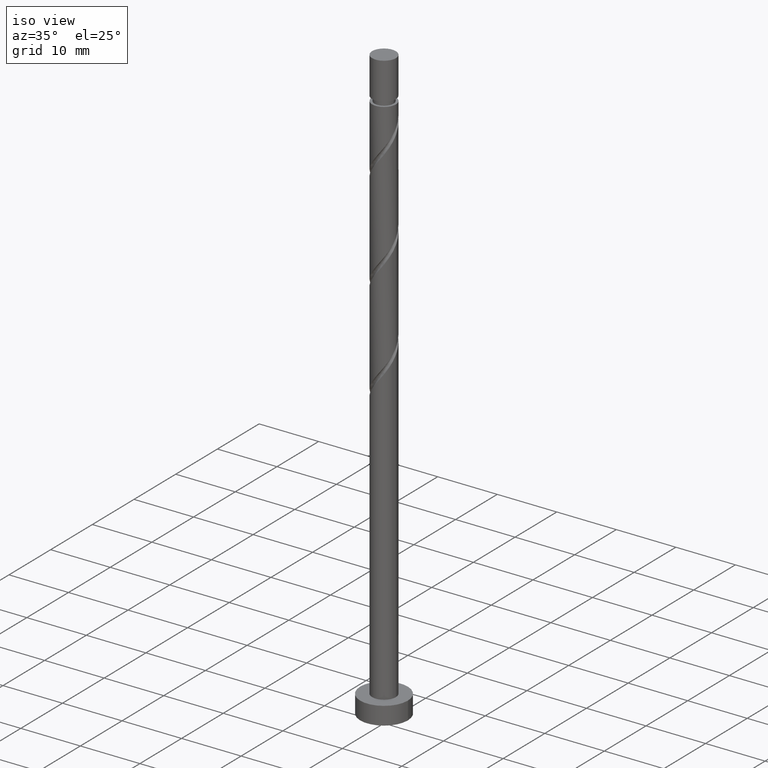
[diagram: clean part render]
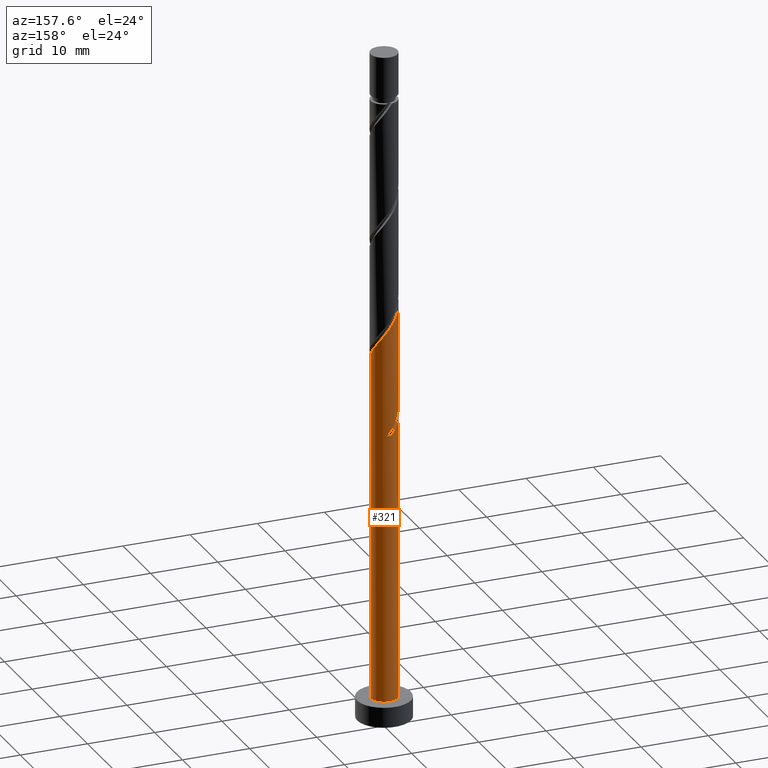
[diagram: tour spotlight — one face highlighted and labeled with its STEP entity id]
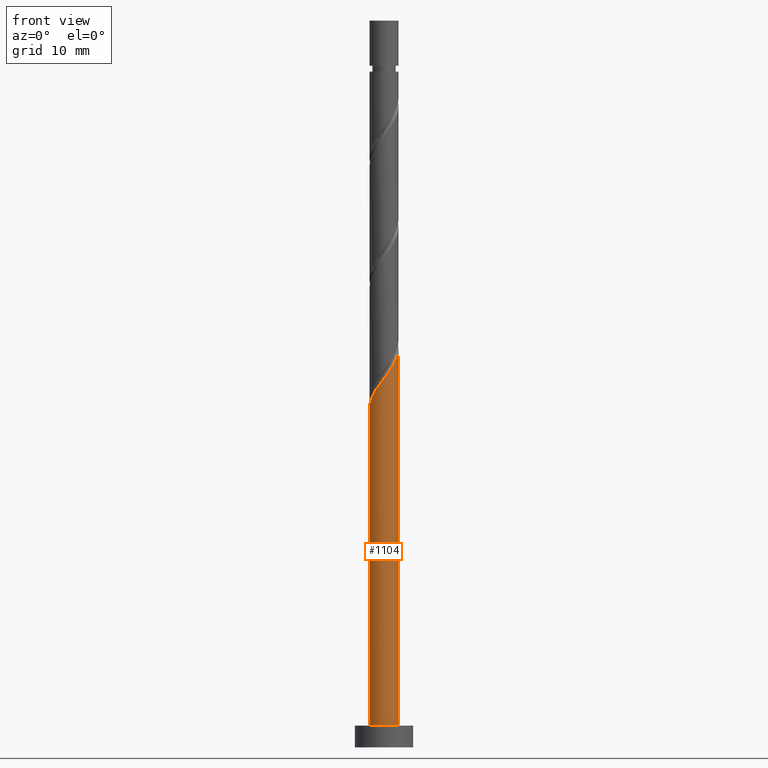
[diagram: tour spotlight — one face highlighted and labeled with its STEP entity id]
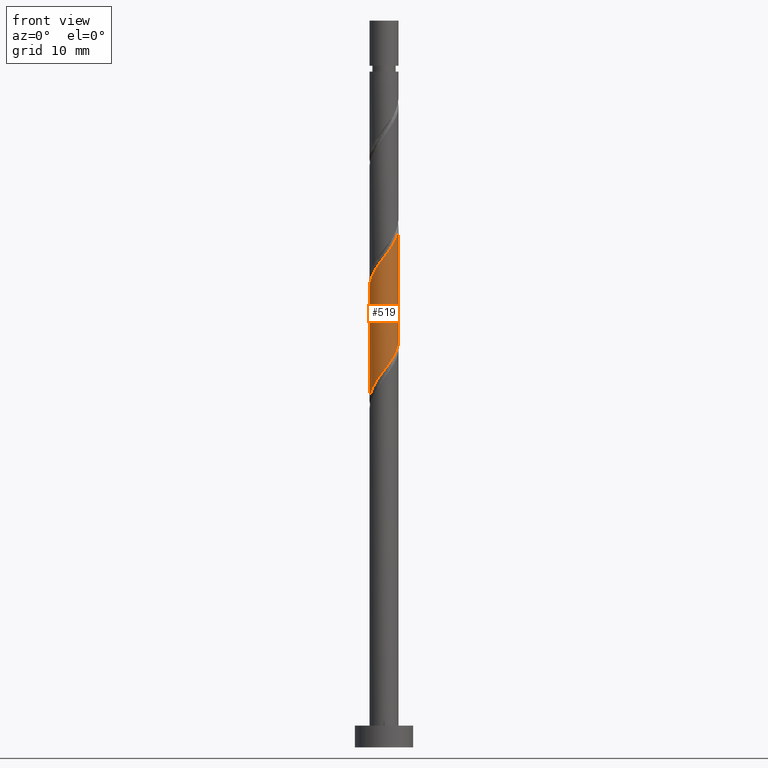
[diagram: tour spotlight — one face highlighted and labeled with its STEP entity id]
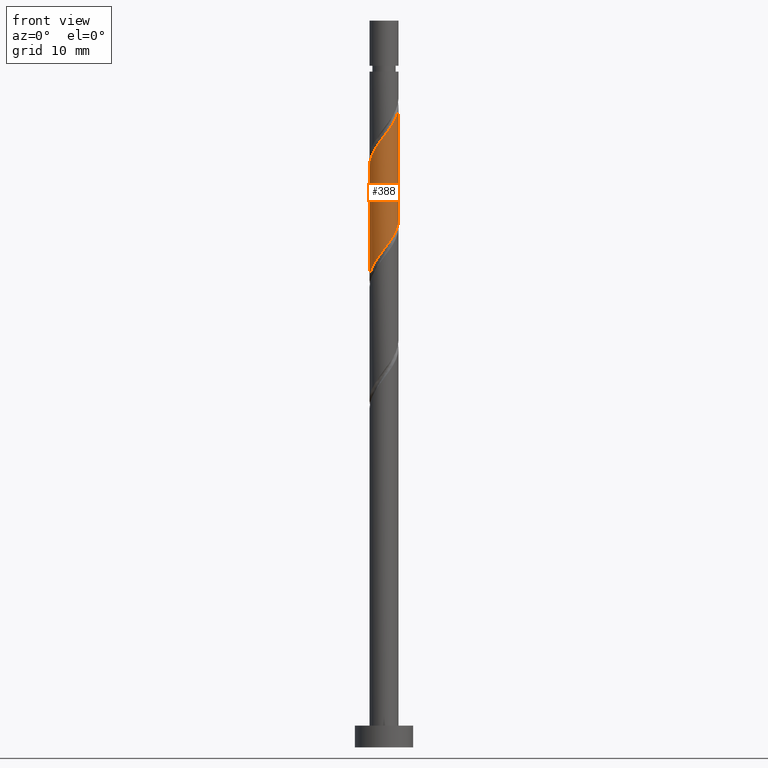
[diagram: tour spotlight — one face highlighted and labeled with its STEP entity id]
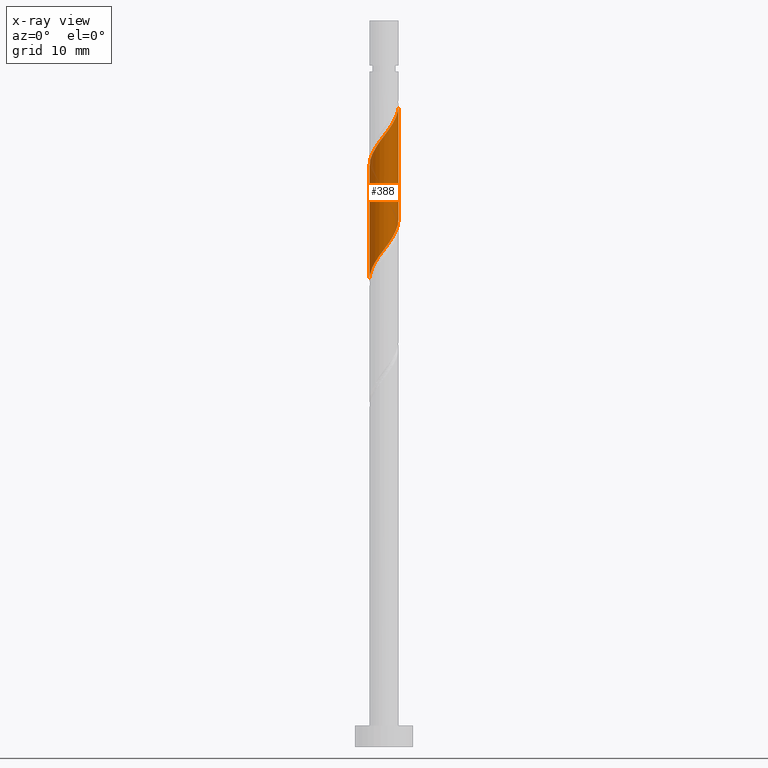
[diagram: x-ray of the same camera — body ghosted, this tour face saturated]
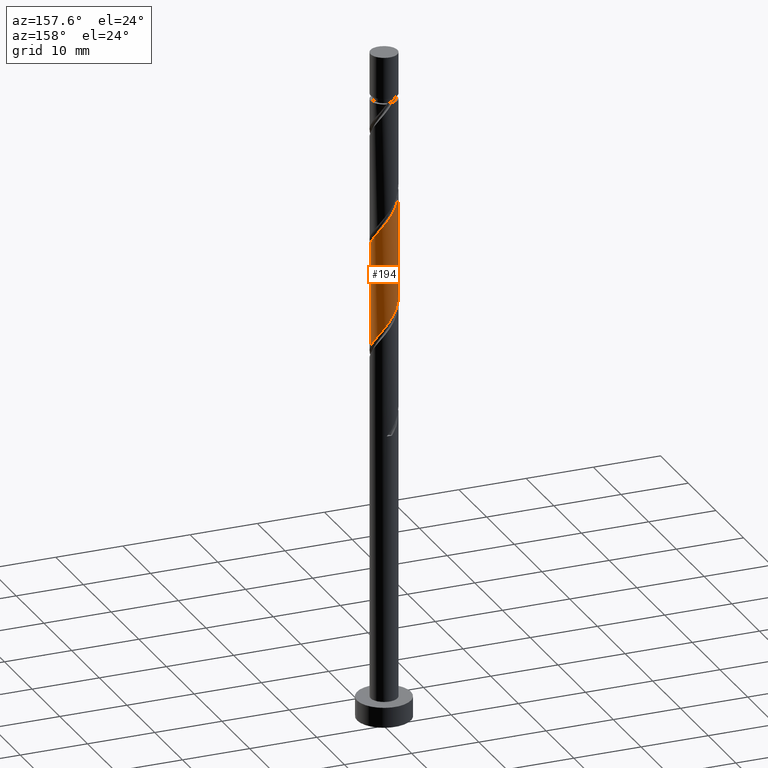
[diagram: tour spotlight — one face highlighted and labeled with its STEP entity id]
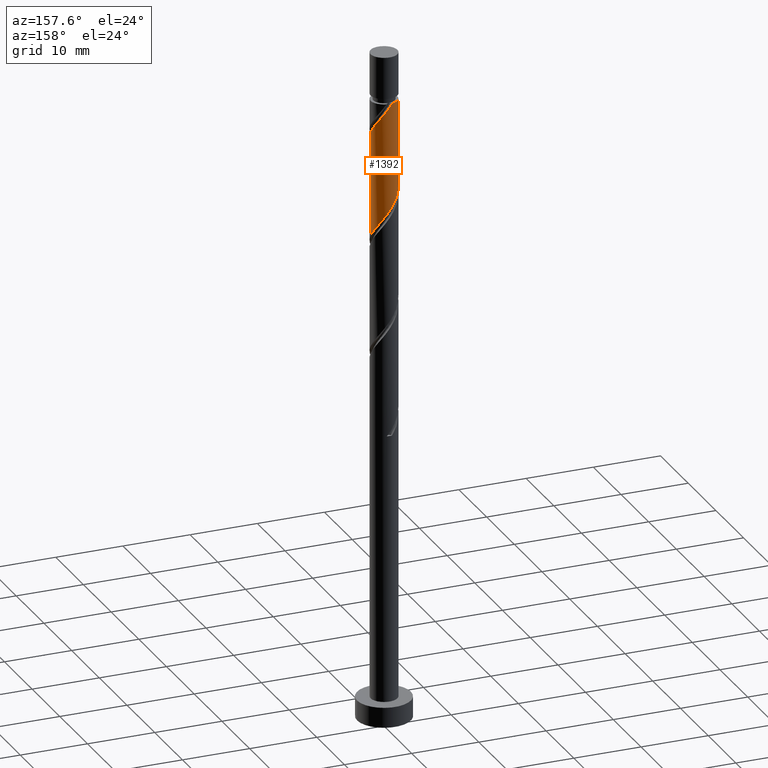
[diagram: tour spotlight — one face highlighted and labeled with its STEP entity id]
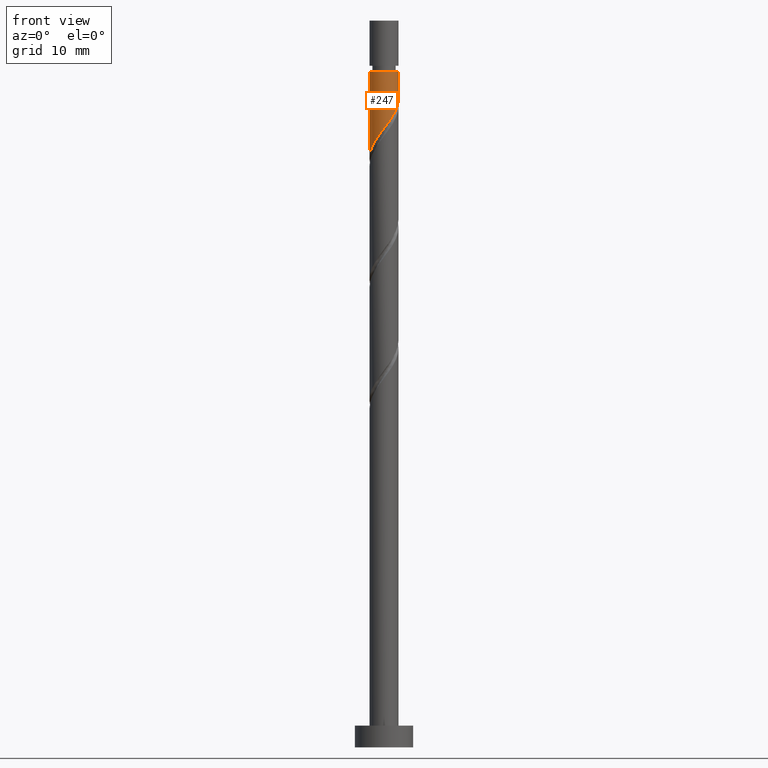
[diagram: tour spotlight — one face highlighted and labeled with its STEP entity id]
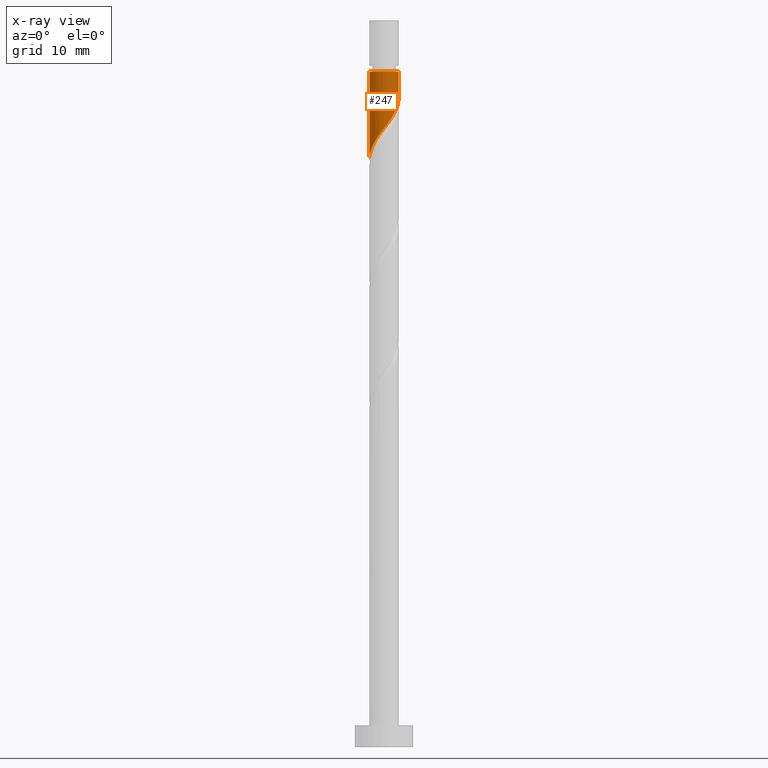
[diagram: x-ray of the same camera — body ghosted, this tour face saturated]
A machine part: a face-by-face anatomy tour. The part has 21 B-rep faces; the first image is the clean iso view, then the 7 largest visible faces are spotlighted one at a time (largest first), each with its STEP entity span.

Face 1 — auxiliary view, entity #321. In plain terms, the highlighted cylindrical surface (edge-blend (fillet) strip) has radius 2 mm, axis along (-0, -0, -1).
Definition (entity closure, byte-faithful):
#5 = DIRECTION ( 'NONE',  ( -0.000000000000000000, -0.000000000000000000, -1.000000000000000000 ) ) ;
#18 = ORIENTED_EDGE ( 'NONE', *, *, #1243, .F. ) ;
#37 = EDGE_CURVE ( 'NONE', #1244, #289, #1331, .T. ) ;
#44 = CARTESIAN_POINT ( 'NONE',  ( 2.000000000000003109, 0.02580334866404328242, 54.98923660839032834 ) ) ;
#49 = CARTESIAN_POINT ( 'NONE',  ( -1.999999999999999556, -1.109218266106865156E-15, 47.68359567776879260 ) ) ;
#56 = CARTESIAN_POINT ( 'NONE',  ( -2.000000000000000000, 0.000000000000000000, 100.0000000000000000 ) ) ;
#95 = VERTEX_POINT ( 'NONE', #49 ) ;
#123 = LINE ( 'NONE', #1044, #856 ) ;
#130 = EDGE_CURVE ( 'NONE', #289, #95, #1189, .T. ) ;
#137 = CARTESIAN_POINT ( 'NONE',  ( -2.000000000000000000, 0.000000000000000000, 3.000000000000000000 ) ) ;
#147 = CYLINDRICAL_SURFACE ( 'NONE', #875, 2.000000000000000000 ) ;
#162 = CARTESIAN_POINT ( 'NONE',  ( -2.000000000000003109, 1.598469420517626687E-15, 46.62188590112463515 ) ) ;
#164 = CARTESIAN_POINT ( 'NONE',  ( -0.2963665399488012997, 1.977919835078958632, 43.91200004870596985 ) ) ;
#166 = CARTESIAN_POINT ( 'NONE',  ( 1.999334298005952526, 0.05159810865775463218, 55.02311115981709833 ) ) ;
#171 = CARTESIAN_POINT ( 'NONE',  ( 1.498412303996177863, 1.324673758792283440, 56.87496301166893886 ) ) ;
#177 = CARTESIAN_POINT ( 'NONE',  ( -1.861112093801905676, 0.7322989651121220023, 46.68977782648373420 ) ) ;
#193 = CARTESIAN_POINT ( 'NONE',  ( -0.05239409265405620825, 2.030177252251149422, 59.18977782648376973 ) ) ;
#212 = DIRECTION ( 'NONE',  ( 0.000000000000000000, 0.000000000000000000, 1.000000000000000000 ) ) ;
#214 = CARTESIAN_POINT ( 'NONE',  ( -1.564745553853106985, 1.245620869966838962, 61.50459264129857218 ) ) ;
#216 = ORIENTED_EDGE ( 'NONE', *, *, #1110, .T. ) ;
#241 = ORIENTED_EDGE ( 'NONE', *, *, #847, .T. ) ;
#274 = CARTESIAN_POINT ( 'NONE',  ( -1.896407278838826427, 0.6353262412077199661, 45.76385190055782459 ) ) ;
#277 = CIRCLE ( 'NONE', #902, 2.000000000000000000 ) ;
#288 = EDGE_CURVE ( 'NONE', #332, #536, #123, .T. ) ;
#289 = VERTEX_POINT ( 'NONE', #472 ) ;
#296 = CARTESIAN_POINT ( 'NONE',  ( 0.9549818761181315674, 1.757273347059558954, 57.80088893759486268 ) ) ;
#321 = ADVANCED_FACE ( 'NONE', ( #744 ), #147, .T. ) ;
#332 = VERTEX_POINT ( 'NONE', #162 ) ;
#340 = ORIENTED_EDGE ( 'NONE', *, *, #403, .F. ) ;
#387 = CARTESIAN_POINT ( 'NONE',  ( -2.000000000000003109, 1.598469420517626687E-15, 46.62188590112463515 ) ) ;
#390 = CARTESIAN_POINT ( 'NONE',  ( 0.3979949748426483414, 1.959999999999999964, 42.98607412278004603 ) ) ;
#394 = CARTESIAN_POINT ( 'NONE',  ( -1.264836579684599949, 1.588884276212342295, 45.30088893759486979 ) ) ;
#403 = EDGE_CURVE ( 'NONE', #688, #332, #1486, .T. ) ;
#426 = CARTESIAN_POINT ( 'NONE',  ( 0.6451271725516614097, 1.925662417906774504, 58.26385190055783170 ) ) ;
#467 = CARTESIAN_POINT ( 'NONE',  ( -1.345108986744403046, 1.521527729054751976, 44.37496301166894597 ) ) ;
#472 = CARTESIAN_POINT ( 'NONE',  ( -2.000000000000003109, 1.598469420517626687E-15, 63.28855256779129945 ) ) ;
#511 = CARTESIAN_POINT ( 'NONE',  ( -1.990236159296060903, 0.4041346888520224168, 47.15274078944673164 ) ) ;
#514 = CARTESIAN_POINT ( 'NONE',  ( 2.000000000000003109, -1.639551578521584240E-15, 54.95521923445797086 ) ) ;
#534 = DIRECTION ( 'NONE',  ( -0.000000000000000000, -0.000000000000000000, -1.000000000000000000 ) ) ;
#536 = VERTEX_POINT ( 'NONE', #137 ) ;
#543 = CARTESIAN_POINT ( 'NONE',  ( -1.345108986744403046, 1.521527729054751976, 61.04162967833561737 ) ) ;
#587 = CARTESIAN_POINT ( 'NONE',  ( -0.3979949748426476752, 1.960000000000003073, 42.98607412278004603 ) ) ;
#594 = CARTESIAN_POINT ( 'NONE',  ( -0.7435958570312400928, 1.889822747748857834, 43.44903708574302215 ) ) ;
#621 = CARTESIAN_POINT ( 'NONE',  ( 1.990236159296064011, 0.4041346888520223057, 55.48607412278006734 ) ) ;
#636 = DIRECTION ( 'NONE',  ( 1.000000000000000000, 0.000000000000000000, 0.000000000000000000 ) ) ;
#663 = VECTOR ( 'NONE', #966, 1000.000000000000000 ) ;
#676 = CARTESIAN_POINT ( 'NONE',  ( -1.784382120961811369, 0.9697140108789262802, 61.96755560426154119 ) ) ;
#688 = VERTEX_POINT ( 'NONE', #777 ) ;
#709 = DIRECTION ( 'NONE',  ( -0.000000000000000000, -0.000000000000000000, -1.000000000000000000 ) ) ;
#719 =( BOUNDED_CURVE ( )  B_SPLINE_CURVE ( 2, ( #1214, #1305, #965, #511, #177, #1422, #957, #394, #755, #973, #164, #989, #390 ),
 .UNSPECIFIED., .F., .T. ) 
 B_SPLINE_CURVE_WITH_KNOTS ( ( 3, 2, 2, 2, 2, 2, 3 ),
 ( 0.9295248053855290626, 0.9305555555555555802, 0.9444444444444444198, 0.9583333333333333703, 0.9722222222222222099, 0.9861111111111111605, 1.000000000000000000 ),
 .UNSPECIFIED. ) 
 CURVE ( )  GEOMETRIC_REPRESENTATION_ITEM ( )  RATIONAL_B_SPLINE_CURVE ( ( 0.9071930855141197014, 0.9080659294509674240, 0.9090909090909075063, 0.8952797754656419693, 0.9090909090909075063, 0.8952797754656419693, 0.9090909090909075063, 0.8952797754656419693, 0.9090909090909075063, 0.8952797754656419693, 0.9090909090909075063, 0.8952797754656419693, 0.9090909090909075063 ) ) 
 REPRESENTATION_ITEM ( '' )  );
#721 = ORIENTED_EDGE ( 'NONE', *, *, #130, .F. ) ;
#722 = CARTESIAN_POINT ( 'NONE',  ( -1.564745553853106985, 1.245620869966838962, 44.83792597463190788 ) ) ;
#744 = FACE_OUTER_BOUND ( 'NONE', #945, .T. ) ;
#752 = CARTESIAN_POINT ( 'NONE',  ( 1.861112093801909895, 0.7322989651121217802, 55.94903708574302215 ) ) ;
#755 = CARTESIAN_POINT ( 'NONE',  ( -0.9549818761181289029, 1.757273347059556734, 44.83792597463187946 ) ) ;
#759 = VECTOR ( 'NONE', #709, 1000.000000000000000 ) ;
#777 = CARTESIAN_POINT ( 'NONE',  ( -0.3979949748426476752, 1.960000000000003073, 42.98607412278004603 ) ) ;
#829 = DIRECTION ( 'NONE',  ( 0.000000000000000000, -0.000000000000000000, -1.000000000000000000 ) ) ;
#847 = EDGE_CURVE ( 'NONE', #1401, #536, #277, .T. ) ;
#856 = VECTOR ( 'NONE', #5, 1000.000000000000000 ) ;
#868 = CARTESIAN_POINT ( 'NONE',  ( 2.000000000000003109, -1.639551578521584240E-15, 54.95521923445797086 ) ) ;
#871 = ORIENTED_EDGE ( 'NONE', *, *, #288, .F. ) ;
#875 = AXIS2_PLACEMENT_3D ( 'NONE', #1067, #534, #1195 ) ;
#890 = CARTESIAN_POINT ( 'NONE',  ( -0.7435958570312400928, 1.889822747748857834, 60.11570375240969355 ) ) ;
#902 = AXIS2_PLACEMENT_3D ( 'NONE', #1240, #212, #636 ) ;
#915 = CARTESIAN_POINT ( 'NONE',  ( -0.3979949748426477307, 1.960000000000003073, 59.65274078944672453 ) ) ;
#944 = CARTESIAN_POINT ( 'NONE',  ( -1.044352421887821736, 1.705675238401805016, 43.91200004870598406 ) ) ;
#945 = EDGE_LOOP ( 'NONE', ( #970, #1137, #241, #871, #340, #216, #18, #721 ) ) ;
#957 = CARTESIAN_POINT ( 'NONE',  ( -1.498412303996175643, 1.324673758792281664, 45.76385190055783170 ) ) ;
#965 = CARTESIAN_POINT ( 'NONE',  ( -1.999334298005948751, 0.05159810865775488892, 47.61570375240966513 ) ) ;
#966 = DIRECTION ( 'NONE',  ( -0.000000000000000000, -0.000000000000000000, -1.000000000000000000 ) ) ;
#970 = ORIENTED_EDGE ( 'NONE', *, *, #37, .F. ) ;
#973 = CARTESIAN_POINT ( 'NONE',  ( -0.6451271725516591893, 1.925662417906772728, 44.37496301166894597 ) ) ;
#976 = CARTESIAN_POINT ( 'NONE',  ( 1.264836579684601947, 1.588884276212344737, 57.33792597463190077 ) ) ;
#989 = CARTESIAN_POINT ( 'NONE',  ( 0.05239409265405651356, 2.030177252251145870, 43.44903708574302215 ) ) ;
#1016 = CARTESIAN_POINT ( 'NONE',  ( -2.000000000000004441, 0.3261087436409103590, 62.85863305542567758 ) ) ;
#1023 = EDGE_CURVE ( 'NONE', #1244, #1401, #1390, .T. ) ;
#1044 = CARTESIAN_POINT ( 'NONE',  ( -2.000000000000000000, 0.000000000000000000, 100.0000000000000000 ) ) ;
#1049 = CARTESIAN_POINT ( 'NONE',  ( 0.000000000000000000, 0.000000000000000000, 42.98607412278004603 ) ) ;
#1067 = CARTESIAN_POINT ( 'NONE',  ( 0.000000000000000000, 0.000000000000000000, 100.0000000000000000 ) ) ;
#1071 = CARTESIAN_POINT ( 'NONE',  ( -1.784382120961811369, 0.9697140108789262802, 45.30088893759488400 ) ) ;
#1083 = CARTESIAN_POINT ( 'NONE',  ( 1.731988028307756222, 1.060463241372221921, 56.41200004870599116 ) ) ;
#1110 = EDGE_CURVE ( 'NONE', #688, #1151, #1139, .T. ) ;
#1119 = CARTESIAN_POINT ( 'NONE',  ( -1.044352421887821736, 1.705675238401805016, 60.57866671537265546 ) ) ;
#1126 = CARTESIAN_POINT ( 'NONE',  ( -1.896407278838826427, 0.6353262412077199661, 62.43051856722449600 ) ) ;
#1137 = ORIENTED_EDGE ( 'NONE', *, *, #1023, .T. ) ;
#1139 = CIRCLE ( 'NONE', #1398, 2.000000000000000000 ) ;
#1151 = VERTEX_POINT ( 'NONE', #1175 ) ;
#1175 = CARTESIAN_POINT ( 'NONE',  ( 0.3979949748426483414, 1.959999999999999964, 42.98607412278004603 ) ) ;
#1179 = DIRECTION ( 'NONE',  ( -1.000000000000000000, 0.000000000000000000, 0.000000000000000000 ) ) ;
#1189 = LINE ( 'NONE', #56, #663 ) ;
#1195 = DIRECTION ( 'NONE',  ( -1.000000000000000000, 0.000000000000000000, 0.000000000000000000 ) ) ;
#1214 = CARTESIAN_POINT ( 'NONE',  ( -1.999999999999999556, -1.109218266106865353E-15, 47.68359567776879260 ) ) ;
#1240 = CARTESIAN_POINT ( 'NONE',  ( 0.000000000000000000, 0.000000000000000000, 3.000000000000000000 ) ) ;
#1243 = EDGE_CURVE ( 'NONE', #95, #1151, #719, .T. ) ;
#1244 = VERTEX_POINT ( 'NONE', #514 ) ;
#1255 = CARTESIAN_POINT ( 'NONE',  ( 0.2963665399488035757, 1.977919835078961075, 58.72681486352079361 ) ) ;
#1285 = CARTESIAN_POINT ( 'NONE',  ( 2.000000000000000000, 2.449293598294705921E-16, 100.0000000000000000 ) ) ;
#1291 = CARTESIAN_POINT ( 'NONE',  ( -2.000000000000003109, 1.598469420517626687E-15, 63.28855256779129945 ) ) ;
#1305 = CARTESIAN_POINT ( 'NONE',  ( -1.999999999999999112, 0.02580334866404159627, 47.64957830383643511 ) ) ;
#1331 =( BOUNDED_CURVE ( )  B_SPLINE_CURVE ( 2, ( #868, #44, #166, #621, #752, #1083, #171, #976, #296, #426, #1255, #193, #915, #890, #1119, #543, #214, #676, #1126, #1016, #1291 ),
 .UNSPECIFIED., .F., .T. ) 
 B_SPLINE_CURVE_WITH_KNOTS ( ( 3, 2, 2, 2, 2, 2, 2, 2, 2, 2, 3 ),
 ( 0.1795248053855291459, 0.1805555555555555802, 0.1944444444444444198, 0.2083333333333333703, 0.2222222222222222099, 0.2361111111111111605, 0.2500000000000000000, 0.2638888888888888395, 0.2777777777777777901, 0.2916666666666666297, 0.3045248053855292292 ),
 .UNSPECIFIED. ) 
 CURVE ( )  GEOMETRIC_REPRESENTATION_ITEM ( )  RATIONAL_B_SPLINE_CURVE ( ( 0.9071930855141258077, 0.9080659294509734192, 0.9090909090909135015, 0.8952797754656478535, 0.9090909090909135015, 0.8952797754656478535, 0.9090909090909135015, 0.8952797754656478535, 0.9090909090909135015, 0.8952797754656478535, 0.9090909090909135015, 0.8952797754656478535, 0.9090909090909135015, 0.8952797754656478535, 0.9090909090909135015, 0.8952797754656478535, 0.9090909090909135015, 0.8952797754656478535, 0.9090909090909135015, 0.8963047551055878248, 0.9071930855141259187 ) ) 
 REPRESENTATION_ITEM ( '' )  );
#1390 = LINE ( 'NONE', #1285, #759 ) ;
#1398 = AXIS2_PLACEMENT_3D ( 'NONE', #1049, #829, #1179 ) ;
#1401 = VERTEX_POINT ( 'NONE', #1414 ) ;
#1402 = CARTESIAN_POINT ( 'NONE',  ( -2.000000000000003997, 0.3261087436409110807, 46.19196638875900618 ) ) ;
#1414 = CARTESIAN_POINT ( 'NONE',  ( 2.000000000000000000, 2.449293598294705921E-16, 3.000000000000000000 ) ) ;
#1422 = CARTESIAN_POINT ( 'NONE',  ( -1.731988028307752225, 1.060463241372222365, 46.22681486352079361 ) ) ;
#1486 =( BOUNDED_CURVE ( )  B_SPLINE_CURVE ( 2, ( #587, #594, #944, #467, #722, #1071, #274, #1402, #387 ),
 .UNSPECIFIED., .F., .T. ) 
 B_SPLINE_CURVE_WITH_KNOTS ( ( 3, 2, 2, 2, 3 ),
 ( 0.000000000000000000, 0.01388888888888883955, 0.02777777777777779011, 0.04166666666666662966, 0.05452480538552920142 ),
 .UNSPECIFIED. ) 
 CURVE ( )  GEOMETRIC_REPRESENTATION_ITEM ( )  RATIONAL_B_SPLINE_CURVE ( ( 0.9090909090909135015, 0.8952797754656478535, 0.9090909090909135015, 0.8952797754656478535, 0.9090909090909135015, 0.8952797754656478535, 0.9090909090909135015, 0.8963047551055878248, 0.9071930855141260297 ) ) 
 REPRESENTATION_ITEM ( '' )  );

Face 2 — front view, entity #1104. In plain terms, the highlighted cylindrical surface (edge-blend (fillet) strip) has radius 2 mm, axis along (-0, -0, -1).
Definition (entity closure, byte-faithful):
#1 = FACE_OUTER_BOUND ( 'NONE', #839, .T. ) ;
#5 = DIRECTION ( 'NONE',  ( -0.000000000000000000, -0.000000000000000000, -1.000000000000000000 ) ) ;
#15 = CARTESIAN_POINT ( 'NONE',  ( -1.264836579684601725, -1.588884276212344959, 49.00459264129858639 ) ) ;
#21 = CARTESIAN_POINT ( 'NONE',  ( 0.7435958570312396487, -1.889822747748858500, 51.78237041907634364 ) ) ;
#117 = CARTESIAN_POINT ( 'NONE',  ( 2.000000000000003553, -0.3261087436409135787, 54.52529972209234899 ) ) ;
#123 = LINE ( 'NONE', #1044, #856 ) ;
#137 = CARTESIAN_POINT ( 'NONE',  ( -2.000000000000000000, 0.000000000000000000, 3.000000000000000000 ) ) ;
#142 = CARTESIAN_POINT ( 'NONE',  ( -0.9549818761181312343, -1.757273347059559399, 49.46755560426154830 ) ) ;
#162 = CARTESIAN_POINT ( 'NONE',  ( -2.000000000000003109, 1.598469420517626687E-15, 46.62188590112463515 ) ) ;
#205 = CIRCLE ( 'NONE', #720, 2.000000000000000000 ) ;
#239 = CARTESIAN_POINT ( 'NONE',  ( -0.2963665399488021879, -1.977919835078961963, 50.39348153018745791 ) ) ;
#249 =( BOUNDED_CURVE ( )  B_SPLINE_CURVE ( 2, ( #835, #259, #930, #362, #1057, #821, #1068, #15, #142, #1271, #239, #575, #600, #21, #484, #700, #949, #1399, #384, #117, #733 ),
 .UNSPECIFIED., .F., .T. ) 
 B_SPLINE_CURVE_WITH_KNOTS ( ( 3, 2, 2, 2, 2, 2, 2, 2, 2, 2, 3 ),
 ( 0.05452480538552920142, 0.05555555555555558023, 0.06944444444444441977, 0.08333333333333337034, 0.09722222222222220989, 0.1111111111111111605, 0.1250000000000000000, 0.1388888888888888395, 0.1527777777777777901, 0.1666666666666666297, 0.1795248053855291459 ),
 .UNSPECIFIED. ) 
 CURVE ( )  GEOMETRIC_REPRESENTATION_ITEM ( )  RATIONAL_B_SPLINE_CURVE ( ( 0.9071930855141260297, 0.9080659294509735302, 0.9090909090909135015, 0.8952797754656478535, 0.9090909090909135015, 0.8952797754656478535, 0.9090909090909135015, 0.8952797754656478535, 0.9090909090909135015, 0.8952797754656478535, 0.9090909090909135015, 0.8952797754656478535, 0.9090909090909135015, 0.8952797754656478535, 0.9090909090909135015, 0.8952797754656478535, 0.9090909090909135015, 0.8952797754656478535, 0.9090909090909135015, 0.8963047551055879358, 0.9071930855141258077 ) ) 
 REPRESENTATION_ITEM ( '' )  );
#259 = CARTESIAN_POINT ( 'NONE',  ( -2.000000000000003109, -0.02580334866404462163, 46.65590327505699975 ) ) ;
#288 = EDGE_CURVE ( 'NONE', #332, #536, #123, .T. ) ;
#332 = VERTEX_POINT ( 'NONE', #162 ) ;
#362 = CARTESIAN_POINT ( 'NONE',  ( -1.990236159296064011, -0.4041346888520225278, 47.15274078944673164 ) ) ;
#368 = DIRECTION ( 'NONE',  ( -1.000000000000000000, 0.000000000000000000, 0.000000000000000000 ) ) ;
#384 = CARTESIAN_POINT ( 'NONE',  ( 1.896407278838826205, -0.6353262412077205212, 54.09718523389114608 ) ) ;
#484 = CARTESIAN_POINT ( 'NONE',  ( 1.044352421887821736, -1.705675238401805016, 52.24533338203931265 ) ) ;
#490 = CARTESIAN_POINT ( 'NONE',  ( 0.000000000000000000, 0.000000000000000000, 100.0000000000000000 ) ) ;
#514 = CARTESIAN_POINT ( 'NONE',  ( 2.000000000000003109, -1.639551578521584240E-15, 54.95521923445797086 ) ) ;
#536 = VERTEX_POINT ( 'NONE', #137 ) ;
#575 = CARTESIAN_POINT ( 'NONE',  ( 0.05239409265405556987, -2.030177252251149422, 50.85644449315043403 ) ) ;
#600 = CARTESIAN_POINT ( 'NONE',  ( 0.3979949748426478973, -1.960000000000003073, 51.31940745611337462 ) ) ;
#700 = CARTESIAN_POINT ( 'NONE',  ( 1.345108986744402824, -1.521527729054752864, 52.70829634500228877 ) ) ;
#704 = ORIENTED_EDGE ( 'NONE', *, *, #288, .T. ) ;
#709 = DIRECTION ( 'NONE',  ( -0.000000000000000000, -0.000000000000000000, -1.000000000000000000 ) ) ;
#718 = DIRECTION ( 'NONE',  ( -0.000000000000000000, -0.000000000000000000, -1.000000000000000000 ) ) ;
#720 = AXIS2_PLACEMENT_3D ( 'NONE', #853, #1188, #1201 ) ;
#733 = CARTESIAN_POINT ( 'NONE',  ( 2.000000000000003109, -1.639551578521584240E-15, 54.95521923445797086 ) ) ;
#759 = VECTOR ( 'NONE', #709, 1000.000000000000000 ) ;
#821 = CARTESIAN_POINT ( 'NONE',  ( -1.731988028307755778, -1.060463241372223475, 48.07866671537266967 ) ) ;
#822 = ORIENTED_EDGE ( 'NONE', *, *, #1215, .F. ) ;
#835 = CARTESIAN_POINT ( 'NONE',  ( -2.000000000000003109, 1.598469420517626687E-15, 46.62188590112463515 ) ) ;
#836 = AXIS2_PLACEMENT_3D ( 'NONE', #490, #718, #368 ) ;
#839 = EDGE_LOOP ( 'NONE', ( #1050, #822, #704, #963 ) ) ;
#853 = CARTESIAN_POINT ( 'NONE',  ( 0.000000000000000000, 0.000000000000000000, 3.000000000000000000 ) ) ;
#856 = VECTOR ( 'NONE', #5, 1000.000000000000000 ) ;
#930 = CARTESIAN_POINT ( 'NONE',  ( -1.999334298005952526, -0.05159810865775447952, 46.68977782648376262 ) ) ;
#949 = CARTESIAN_POINT ( 'NONE',  ( 1.564745553853106985, -1.245620869966838962, 53.17125930796524358 ) ) ;
#963 = ORIENTED_EDGE ( 'NONE', *, *, #1288, .T. ) ;
#1023 = EDGE_CURVE ( 'NONE', #1244, #1401, #1390, .T. ) ;
#1044 = CARTESIAN_POINT ( 'NONE',  ( -2.000000000000000000, 0.000000000000000000, 100.0000000000000000 ) ) ;
#1050 = ORIENTED_EDGE ( 'NONE', *, *, #1023, .F. ) ;
#1057 = CARTESIAN_POINT ( 'NONE',  ( -1.861112093801908784, -0.7322989651121224464, 47.61570375240968644 ) ) ;
#1068 = CARTESIAN_POINT ( 'NONE',  ( -1.498412303996178307, -1.324673758792282996, 48.54162967833558895 ) ) ;
#1104 = ADVANCED_FACE ( 'NONE', ( #1 ), #1374, .T. ) ;
#1188 = DIRECTION ( 'NONE',  ( 0.000000000000000000, 0.000000000000000000, 1.000000000000000000 ) ) ;
#1201 = DIRECTION ( 'NONE',  ( 1.000000000000000000, 0.000000000000000000, 0.000000000000000000 ) ) ;
#1215 = EDGE_CURVE ( 'NONE', #332, #1244, #249, .T. ) ;
#1244 = VERTEX_POINT ( 'NONE', #514 ) ;
#1271 = CARTESIAN_POINT ( 'NONE',  ( -0.6451271725516604105, -1.925662417906775170, 49.93051856722449600 ) ) ;
#1285 = CARTESIAN_POINT ( 'NONE',  ( 2.000000000000000000, 2.449293598294705921E-16, 100.0000000000000000 ) ) ;
#1288 = EDGE_CURVE ( 'NONE', #536, #1401, #205, .T. ) ;
#1374 = CYLINDRICAL_SURFACE ( 'NONE', #836, 2.000000000000000000 ) ;
#1390 = LINE ( 'NONE', #1285, #759 ) ;
#1399 = CARTESIAN_POINT ( 'NONE',  ( 1.784382120961811369, -0.9697140108789268353, 53.63422227092821259 ) ) ;
#1401 = VERTEX_POINT ( 'NONE', #1414 ) ;
#1414 = CARTESIAN_POINT ( 'NONE',  ( 2.000000000000000000, 2.449293598294705921E-16, 3.000000000000000000 ) ) ;

Face 3 — front view, entity #519. In plain terms, the highlighted cylindrical surface (edge-blend (fillet) strip) has radius 2 mm, axis along (-0, -0, -1).
Definition (entity closure, byte-faithful):
#32 = CARTESIAN_POINT ( 'NONE',  ( -1.345108986744401047, -1.521527729054749978, 49.93051856722449600 ) ) ;
#49 = CARTESIAN_POINT ( 'NONE',  ( -1.999999999999999556, -1.109218266106865156E-15, 47.68359567776879260 ) ) ;
#56 = CARTESIAN_POINT ( 'NONE',  ( -2.000000000000000000, 0.000000000000000000, 100.0000000000000000 ) ) ;
#65 = CARTESIAN_POINT ( 'NONE',  ( 1.731988028307752003, -1.060463241372222809, 54.56014819685412220 ) ) ;
#76 = ORIENTED_EDGE ( 'NONE', *, *, #1452, .F. ) ;
#84 = CARTESIAN_POINT ( 'NONE',  ( -1.896407278838823762, -0.6353262412077178567, 48.54162967833559605 ) ) ;
#88 = VERTEX_POINT ( 'NONE', #1306 ) ;
#95 = VERTEX_POINT ( 'NONE', #49 ) ;
#109 = CARTESIAN_POINT ( 'NONE',  ( 1.044352421887821736, -1.705675238401805016, 68.91200004870600537 ) ) ;
#125 = ORIENTED_EDGE ( 'NONE', *, *, #174, .F. ) ;
#126 = FACE_OUTER_BOUND ( 'NONE', #1383, .T. ) ;
#130 = EDGE_CURVE ( 'NONE', #289, #95, #1189, .T. ) ;
#138 =( BOUNDED_CURVE ( )  B_SPLINE_CURVE ( 2, ( #1451, #912, #191, #211, #1329, #221, #1141, #654, #1247, #691, #438, #540, #887, #774, #109, #904, #1350, #432, #335, #566, #1014 ),
 .UNSPECIFIED., .F., .T. ) 
 B_SPLINE_CURVE_WITH_KNOTS ( ( 3, 2, 2, 2, 2, 2, 2, 2, 2, 2, 3 ),
 ( 0.3045248053855292292, 0.3055555555555555802, 0.3194444444444444198, 0.3333333333333333703, 0.3472222222222222099, 0.3611111111111111605, 0.3750000000000000000, 0.3888888888888888395, 0.4027777777777777901, 0.4166666666666666297, 0.4295248053855290071 ),
 .UNSPECIFIED. ) 
 CURVE ( )  GEOMETRIC_REPRESENTATION_ITEM ( )  RATIONAL_B_SPLINE_CURVE ( ( 0.9071930855141259187, 0.9080659294509735302, 0.9090909090909135015, 0.8952797754656478535, 0.9090909090909135015, 0.8952797754656478535, 0.9090909090909135015, 0.8952797754656478535, 0.9090909090909135015, 0.8952797754656478535, 0.9090909090909135015, 0.8952797754656478535, 0.9090909090909135015, 0.8952797754656478535, 0.9090909090909135015, 0.8952797754656478535, 0.9090909090909135015, 0.8952797754656478535, 0.9090909090909135015, 0.8963047551055880469, 0.9071930855141256966 ) ) 
 REPRESENTATION_ITEM ( '' )  );
#174 = EDGE_CURVE ( 'NONE', #801, #88, #1336, .T. ) ;
#191 = CARTESIAN_POINT ( 'NONE',  ( -1.999334298005952526, -0.05159810865775447952, 63.35644449315041982 ) ) ;
#211 = CARTESIAN_POINT ( 'NONE',  ( -1.990236159296064011, -0.4041346888520225278, 63.81940745611340304 ) ) ;
#221 = CARTESIAN_POINT ( 'NONE',  ( -1.731988028307755778, -1.060463241372223475, 64.74533338203931976 ) ) ;
#230 = AXIS2_PLACEMENT_3D ( 'NONE', #345, #451, #824 ) ;
#289 = VERTEX_POINT ( 'NONE', #472 ) ;
#335 = CARTESIAN_POINT ( 'NONE',  ( 1.896407278838826205, -0.6353262412077205212, 70.76385190055782459 ) ) ;
#345 = CARTESIAN_POINT ( 'NONE',  ( 0.000000000000000000, 0.000000000000000000, 100.0000000000000000 ) ) ;
#353 = VECTOR ( 'NONE', #880, 1000.000000000000000 ) ;
#432 = CARTESIAN_POINT ( 'NONE',  ( 1.784382120961811369, -0.9697140108789268353, 70.30088893759487689 ) ) ;
#438 = CARTESIAN_POINT ( 'NONE',  ( -0.2963665399488021879, -1.977919835078961963, 67.06014819685412931 ) ) ;
#451 = DIRECTION ( 'NONE',  ( -0.000000000000000000, -0.000000000000000000, -1.000000000000000000 ) ) ;
#472 = CARTESIAN_POINT ( 'NONE',  ( -2.000000000000003109, 1.598469420517626687E-15, 63.28855256779129945 ) ) ;
#518 = CARTESIAN_POINT ( 'NONE',  ( 0.9549818761181289029, -1.757273347059556734, 53.17125930796523647 ) ) ;
#519 = ADVANCED_FACE ( 'NONE', ( #126 ), #588, .T. ) ;
#540 = CARTESIAN_POINT ( 'NONE',  ( 0.05239409265405556987, -2.030177252251149422, 67.52311115981709122 ) ) ;
#566 = CARTESIAN_POINT ( 'NONE',  ( 2.000000000000002665, -0.3261087436409169649, 71.19196638875899907 ) ) ;
#588 = CYLINDRICAL_SURFACE ( 'NONE', #230, 2.000000000000000000 ) ;
#592 = CARTESIAN_POINT ( 'NONE',  ( -0.7435958570312399818, -1.889822747748854725, 50.85644449315042692 ) ) ;
#627 = CARTESIAN_POINT ( 'NONE',  ( -1.564745553853104765, -1.245620869966836963, 49.46755560426152698 ) ) ;
#654 = CARTESIAN_POINT ( 'NONE',  ( -1.264836579684601725, -1.588884276212344959, 65.67125930796524358 ) ) ;
#658 = CARTESIAN_POINT ( 'NONE',  ( 1.990236159296060903, -0.4041346888520226943, 55.48607412278005313 ) ) ;
#663 = VECTOR ( 'NONE', #966, 1000.000000000000000 ) ;
#678 = CARTESIAN_POINT ( 'NONE',  ( 1.498412303996175421, -1.324673758792282108, 54.09718523389114608 ) ) ;
#686 = CARTESIAN_POINT ( 'NONE',  ( 2.000000000000000000, -0.02580334866403955971, 55.98291163716979213 ) ) ;
#691 = CARTESIAN_POINT ( 'NONE',  ( -0.6451271725516604105, -1.925662417906775170, 66.59718523389116740 ) ) ;
#701 = CARTESIAN_POINT ( 'NONE',  ( -0.3979949748426480638, -1.959999999999999520, 51.31940745611338883 ) ) ;
#748 = CARTESIAN_POINT ( 'NONE',  ( 2.000000000000003109, -1.639551578521584240E-15, 71.62188590112461384 ) ) ;
#750 = CARTESIAN_POINT ( 'NONE',  ( -1.044352421887820626, -1.705675238401801908, 50.39348153018745080 ) ) ;
#774 = CARTESIAN_POINT ( 'NONE',  ( 0.7435958570312396487, -1.889822747748858500, 68.44903708574304346 ) ) ;
#789 = CARTESIAN_POINT ( 'NONE',  ( 2.000000000000000000, 2.449293598294705921E-16, 100.0000000000000000 ) ) ;
#790 = CARTESIAN_POINT ( 'NONE',  ( -1.999999999999999556, -1.109218266106865353E-15, 47.68359567776879260 ) ) ;
#792 = CARTESIAN_POINT ( 'NONE',  ( 1.861112093801905676, -0.7322989651121217802, 55.02311115981706990 ) ) ;
#801 = VERTEX_POINT ( 'NONE', #748 ) ;
#824 = DIRECTION ( 'NONE',  ( -1.000000000000000000, 0.000000000000000000, 0.000000000000000000 ) ) ;
#830 = EDGE_CURVE ( 'NONE', #88, #95, #1031, .T. ) ;
#874 = CARTESIAN_POINT ( 'NONE',  ( -0.05239409265405726296, -2.030177252251145870, 51.78237041907635074 ) ) ;
#880 = DIRECTION ( 'NONE',  ( -0.000000000000000000, -0.000000000000000000, -1.000000000000000000 ) ) ;
#887 = CARTESIAN_POINT ( 'NONE',  ( 0.3979949748426478973, -1.960000000000003073, 67.98607412278005313 ) ) ;
#904 = CARTESIAN_POINT ( 'NONE',  ( 1.345108986744402824, -1.521527729054752864, 69.37496301166893886 ) ) ;
#912 = CARTESIAN_POINT ( 'NONE',  ( -2.000000000000003109, -0.02580334866404531899, 63.32256994172364273 ) ) ;
#966 = DIRECTION ( 'NONE',  ( -0.000000000000000000, -0.000000000000000000, -1.000000000000000000 ) ) ;
#991 = CARTESIAN_POINT ( 'NONE',  ( 2.000000000000000000, 3.323920056683871498E-16, 56.01692901110214962 ) ) ;
#1006 = CARTESIAN_POINT ( 'NONE',  ( -2.000000000000000000, -0.3261087436409134122, 48.11351519013442157 ) ) ;
#1014 = CARTESIAN_POINT ( 'NONE',  ( 2.000000000000003109, -1.639551578521584240E-15, 71.62188590112461384 ) ) ;
#1031 =( BOUNDED_CURVE ( )  B_SPLINE_CURVE ( 2, ( #991, #686, #1455, #658, #792, #65, #678, #1463, #518, #1438, #1352, #874, #701, #592, #750, #32, #627, #1337, #84, #1006, #790 ),
 .UNSPECIFIED., .F., .T. ) 
 B_SPLINE_CURVE_WITH_KNOTS ( ( 3, 2, 2, 2, 2, 2, 2, 2, 2, 2, 3 ),
 ( 0.8045248053855289516, 0.8055555555555555802, 0.8194444444444444198, 0.8333333333333333703, 0.8472222222222222099, 0.8611111111111111605, 0.8750000000000000000, 0.8888888888888888395, 0.9027777777777777901, 0.9166666666666666297, 0.9295248053855290626 ),
 .UNSPECIFIED. ) 
 CURVE ( )  GEOMETRIC_REPRESENTATION_ITEM ( )  RATIONAL_B_SPLINE_CURVE ( ( 0.9071930855141195904, 0.9080659294509673130, 0.9090909090909075063, 0.8952797754656419693, 0.9090909090909075063, 0.8952797754656419693, 0.9090909090909075063, 0.8952797754656419693, 0.9090909090909075063, 0.8952797754656419693, 0.9090909090909075063, 0.8952797754656419693, 0.9090909090909075063, 0.8952797754656419693, 0.9090909090909075063, 0.8952797754656419693, 0.9090909090909075063, 0.8952797754656419693, 0.9090909090909075063, 0.8963047551055820517, 0.9071930855141197014 ) ) 
 REPRESENTATION_ITEM ( '' )  );
#1054 = ORIENTED_EDGE ( 'NONE', *, *, #130, .T. ) ;
#1113 = ORIENTED_EDGE ( 'NONE', *, *, #830, .F. ) ;
#1141 = CARTESIAN_POINT ( 'NONE',  ( -1.498412303996178307, -1.324673758792282996, 65.20829634500228167 ) ) ;
#1189 = LINE ( 'NONE', #56, #663 ) ;
#1247 = CARTESIAN_POINT ( 'NONE',  ( -0.9549818761181312343, -1.757273347059559399, 66.13422227092821970 ) ) ;
#1306 = CARTESIAN_POINT ( 'NONE',  ( 2.000000000000000000, 3.323920056683871498E-16, 56.01692901110214962 ) ) ;
#1329 = CARTESIAN_POINT ( 'NONE',  ( -1.861112093801908784, -0.7322989651121224464, 64.28237041907634364 ) ) ;
#1336 = LINE ( 'NONE', #789, #353 ) ;
#1337 = CARTESIAN_POINT ( 'NONE',  ( -1.784382120961808926, -0.9697140108789243929, 49.00459264129857218 ) ) ;
#1350 = CARTESIAN_POINT ( 'NONE',  ( 1.564745553853106985, -1.245620869966838962, 69.83792597463190077 ) ) ;
#1352 = CARTESIAN_POINT ( 'NONE',  ( 0.2963665399488011332, -1.977919835078958632, 52.24533338203930555 ) ) ;
#1383 = EDGE_LOOP ( 'NONE', ( #125, #76, #1054, #1113 ) ) ;
#1438 = CARTESIAN_POINT ( 'NONE',  ( 0.6451271725516586342, -1.925662417906772728, 52.70829634500226746 ) ) ;
#1451 = CARTESIAN_POINT ( 'NONE',  ( -2.000000000000003109, 1.598469420517626687E-15, 63.28855256779129945 ) ) ;
#1452 = EDGE_CURVE ( 'NONE', #289, #801, #138, .T. ) ;
#1455 = CARTESIAN_POINT ( 'NONE',  ( 1.999334298005949195, -0.05159810865775558281, 55.94903708574300794 ) ) ;
#1463 = CARTESIAN_POINT ( 'NONE',  ( 1.264836579684599505, -1.588884276212342295, 53.63422227092819838 ) ) ;

Face 4 — front view, entity #388. An x-ray twin of the same camera follows (body ghosted, this face saturated) — the face is partly hidden behind the body. In plain terms, the highlighted cylindrical surface (edge-blend (fillet) strip) has radius 2 mm, axis along (-0, -0, -1).
Definition (entity closure, byte-faithful):
#17 = DIRECTION ( 'NONE',  ( -0.000000000000000000, -0.000000000000000000, -1.000000000000000000 ) ) ;
#31 = CARTESIAN_POINT ( 'NONE',  ( 2.000000000000003109, 9.262159259074099705E-16, 88.28855256779129945 ) ) ;
#41 = CARTESIAN_POINT ( 'NONE',  ( -0.05239409265405726296, -2.030177252251145870, 68.44903708574301504 ) ) ;
#48 = CARTESIAN_POINT ( 'NONE',  ( -1.784382120961808926, -0.9697140108789243929, 65.67125930796524358 ) ) ;
#60 = CARTESIAN_POINT ( 'NONE',  ( 0.9549818761181289029, -1.757273347059556734, 69.83792597463190077 ) ) ;
#110 = CARTESIAN_POINT ( 'NONE',  ( -0.2963665399488021879, -1.977919835078961963, 83.72681486352080071 ) ) ;
#136 = LINE ( 'NONE', #731, #507 ) ;
#155 = CARTESIAN_POINT ( 'NONE',  ( -1.999999999999999556, -1.109218266106865156E-15, 64.35026234443547821 ) ) ;
#156 =( BOUNDED_CURVE ( )  B_SPLINE_CURVE ( 2, ( #1445, #457, #1015, #1022, #204, #443, #694, #449, #1482, #807, #110, #1030, #1000, #919, #1109, #425, #889, #729, #1407, #245, #31 ),
 .UNSPECIFIED., .F., .T. ) 
 B_SPLINE_CURVE_WITH_KNOTS ( ( 3, 2, 2, 2, 2, 2, 2, 2, 2, 2, 3 ),
 ( 0.5545248053855290626, 0.5555555555555555802, 0.5694444444444444198, 0.5833333333333332593, 0.5972222222222222099, 0.6111111111111111605, 0.6250000000000000000, 0.6388888888888888395, 0.6527777777777777901, 0.6666666666666667407, 0.6795248053855289516 ),
 .UNSPECIFIED. ) 
 CURVE ( )  GEOMETRIC_REPRESENTATION_ITEM ( )  RATIONAL_B_SPLINE_CURVE ( ( 0.9071930855141258077, 0.9080659294509734192, 0.9090909090909135015, 0.8952797754656478535, 0.9090909090909135015, 0.8952797754656478535, 0.9090909090909135015, 0.8952797754656478535, 0.9090909090909135015, 0.8952797754656478535, 0.9090909090909135015, 0.8952797754656478535, 0.9090909090909135015, 0.8952797754656478535, 0.9090909090909135015, 0.8952797754656478535, 0.9090909090909135015, 0.8952797754656478535, 0.9090909090909135015, 0.8963047551055881579, 0.9071930855141254746 ) ) 
 REPRESENTATION_ITEM ( '' )  );
#168 = CARTESIAN_POINT ( 'NONE',  ( -1.345108986744401047, -1.521527729054749978, 66.59718523389115319 ) ) ;
#182 = CARTESIAN_POINT ( 'NONE',  ( -0.3979949748426480638, -1.959999999999999520, 67.98607412278003892 ) ) ;
#204 = CARTESIAN_POINT ( 'NONE',  ( -1.861112093801908784, -0.7322989651121224464, 80.94903708574300083 ) ) ;
#208 = VERTEX_POINT ( 'NONE', #439 ) ;
#231 = VECTOR ( 'NONE', #1204, 1000.000000000000000 ) ;
#233 = VERTEX_POINT ( 'NONE', #1453 ) ;
#245 = CARTESIAN_POINT ( 'NONE',  ( 2.000000000000001776, -0.3261087436409185747, 87.85863305542564206 ) ) ;
#255 = CARTESIAN_POINT ( 'NONE',  ( 0.000000000000000000, 0.000000000000000000, 100.0000000000000000 ) ) ;
#272 = CARTESIAN_POINT ( 'NONE',  ( 1.990236159296060903, -0.4041346888520226943, 72.15274078944672453 ) ) ;
#279 = CARTESIAN_POINT ( 'NONE',  ( -2.000000000000000000, 0.000000000000000000, 100.0000000000000000 ) ) ;
#304 = LINE ( 'NONE', #279, #231 ) ;
#380 = EDGE_CURVE ( 'NONE', #233, #1235, #136, .T. ) ;
#388 = ADVANCED_FACE ( 'NONE', ( #1279 ), #1302, .T. ) ;
#402 = CARTESIAN_POINT ( 'NONE',  ( 1.498412303996175421, -1.324673758792282108, 70.76385190055781038 ) ) ;
#412 = CARTESIAN_POINT ( 'NONE',  ( -2.000000000000000888, -0.3261087436409106921, 64.78018185680109298 ) ) ;
#425 = CARTESIAN_POINT ( 'NONE',  ( 1.345108986744402824, -1.521527729054752864, 86.04162967833562448 ) ) ;
#439 = CARTESIAN_POINT ( 'NONE',  ( -2.000000000000003109, -9.635633422746439477E-16, 79.95521923445795665 ) ) ;
#443 = CARTESIAN_POINT ( 'NONE',  ( -1.731988028307755778, -1.060463241372223475, 81.41200004870601958 ) ) ;
#449 = CARTESIAN_POINT ( 'NONE',  ( -1.264836579684601725, -1.588884276212344959, 82.33792597463194340 ) ) ;
#457 = CARTESIAN_POINT ( 'NONE',  ( -2.000000000000002665, -0.02580334866404095442, 79.98923660839029992 ) ) ;
#482 = VERTEX_POINT ( 'NONE', #1273 ) ;
#507 = VECTOR ( 'NONE', #1381, 1000.000000000000000 ) ;
#546 = ORIENTED_EDGE ( 'NONE', *, *, #1364, .F. ) ;
#602 = DIRECTION ( 'NONE',  ( -1.000000000000000000, 0.000000000000000000, 0.000000000000000000 ) ) ;
#604 = CARTESIAN_POINT ( 'NONE',  ( 2.000000000000000000, 3.323920056683871498E-16, 72.68359567776880681 ) ) ;
#626 = CARTESIAN_POINT ( 'NONE',  ( 0.2963665399488011332, -1.977919835078958632, 68.91200004870597695 ) ) ;
#642 = CARTESIAN_POINT ( 'NONE',  ( -0.7435958570312399818, -1.889822747748854725, 67.52311115981709122 ) ) ;
#694 = CARTESIAN_POINT ( 'NONE',  ( -1.498412303996178307, -1.324673758792282996, 81.87496301166893886 ) ) ;
#696 = EDGE_LOOP ( 'NONE', ( #955, #1161, #986, #546 ) ) ;
#729 = CARTESIAN_POINT ( 'NONE',  ( 1.784382120961811369, -0.9697140108789268353, 86.96755560426153409 ) ) ;
#731 = CARTESIAN_POINT ( 'NONE',  ( 2.000000000000000000, 2.449293598294705921E-16, 100.0000000000000000 ) ) ;
#765 = CARTESIAN_POINT ( 'NONE',  ( 1.731988028307752003, -1.060463241372222809, 71.22681486352080071 ) ) ;
#807 = CARTESIAN_POINT ( 'NONE',  ( -0.6451271725516604105, -1.925662417906775170, 83.26385190055783880 ) ) ;
#860 = CARTESIAN_POINT ( 'NONE',  ( -1.044352421887820626, -1.705675238401801908, 67.06014819685411510 ) ) ;
#866 = CARTESIAN_POINT ( 'NONE',  ( 1.999334298005949195, -0.05159810865775558281, 72.61570375240965802 ) ) ;
#872 = CARTESIAN_POINT ( 'NONE',  ( 1.861112093801905676, -0.7322989651121217802, 71.68977782648374841 ) ) ;
#889 = CARTESIAN_POINT ( 'NONE',  ( 1.564745553853106985, -1.245620869966838962, 86.50459264129855796 ) ) ;
#919 = CARTESIAN_POINT ( 'NONE',  ( 0.7435958570312396487, -1.889822747748858500, 85.11570375240970066 ) ) ;
#955 = ORIENTED_EDGE ( 'NONE', *, *, #380, .F. ) ;
#986 = ORIENTED_EDGE ( 'NONE', *, *, #1318, .T. ) ;
#992 = AXIS2_PLACEMENT_3D ( 'NONE', #255, #17, #602 ) ;
#995 = EDGE_CURVE ( 'NONE', #208, #233, #156, .T. ) ;
#1000 = CARTESIAN_POINT ( 'NONE',  ( 0.3979949748426478973, -1.960000000000003073, 84.65274078944673875 ) ) ;
#1015 = CARTESIAN_POINT ( 'NONE',  ( -1.999334298005952526, -0.05159810865775447952, 80.02311115981709122 ) ) ;
#1022 = CARTESIAN_POINT ( 'NONE',  ( -1.990236159296064011, -0.4041346888520225278, 80.48607412278008155 ) ) ;
#1030 = CARTESIAN_POINT ( 'NONE',  ( 0.05239409265405556987, -2.030177252251149422, 84.18977782648376262 ) ) ;
#1096 = CARTESIAN_POINT ( 'NONE',  ( 2.000000000000000000, 3.323920056683871498E-16, 72.68359567776880681 ) ) ;
#1109 = CARTESIAN_POINT ( 'NONE',  ( 1.044352421887821736, -1.705675238401805016, 85.57866671537267678 ) ) ;
#1161 = ORIENTED_EDGE ( 'NONE', *, *, #995, .F. ) ;
#1196 = CARTESIAN_POINT ( 'NONE',  ( 1.264836579684599505, -1.588884276212342295, 70.30088893759486268 ) ) ;
#1204 = DIRECTION ( 'NONE',  ( -0.000000000000000000, -0.000000000000000000, -1.000000000000000000 ) ) ;
#1235 = VERTEX_POINT ( 'NONE', #604 ) ;
#1273 = CARTESIAN_POINT ( 'NONE',  ( -1.999999999999999556, -1.109218266106865156E-15, 64.35026234443547821 ) ) ;
#1279 = FACE_OUTER_BOUND ( 'NONE', #696, .T. ) ;
#1300 = CARTESIAN_POINT ( 'NONE',  ( 2.000000000000000000, -0.02580334866403955971, 72.64957830383643511 ) ) ;
#1302 = CYLINDRICAL_SURFACE ( 'NONE', #992, 2.000000000000000000 ) ;
#1311 = CARTESIAN_POINT ( 'NONE',  ( -1.896407278838823762, -0.6353262412077178567, 65.20829634500226746 ) ) ;
#1316 = CARTESIAN_POINT ( 'NONE',  ( -1.564745553853104765, -1.245620869966836963, 66.13422227092820549 ) ) ;
#1318 = EDGE_CURVE ( 'NONE', #208, #482, #304, .T. ) ;
#1364 = EDGE_CURVE ( 'NONE', #1235, #482, #1464, .T. ) ;
#1381 = DIRECTION ( 'NONE',  ( -0.000000000000000000, -0.000000000000000000, -1.000000000000000000 ) ) ;
#1407 = CARTESIAN_POINT ( 'NONE',  ( 1.896407278838826205, -0.6353262412077205212, 87.43051856722448179 ) ) ;
#1430 = CARTESIAN_POINT ( 'NONE',  ( 0.6451271725516586342, -1.925662417906772728, 69.37496301166893886 ) ) ;
#1445 = CARTESIAN_POINT ( 'NONE',  ( -2.000000000000003109, -9.635633422746439477E-16, 79.95521923445795665 ) ) ;
#1453 = CARTESIAN_POINT ( 'NONE',  ( 2.000000000000003109, 9.262159259074099705E-16, 88.28855256779129945 ) ) ;
#1464 =( BOUNDED_CURVE ( )  B_SPLINE_CURVE ( 2, ( #1096, #1300, #866, #272, #872, #765, #402, #1196, #60, #1430, #626, #41, #182, #642, #860, #168, #1316, #48, #1311, #412, #155 ),
 .UNSPECIFIED., .F., .T. ) 
 B_SPLINE_CURVE_WITH_KNOTS ( ( 3, 2, 2, 2, 2, 2, 2, 2, 2, 2, 3 ),
 ( 0.5545248053855289516, 0.5555555555555555802, 0.5694444444444444198, 0.5833333333333333703, 0.5972222222222222099, 0.6111111111111111605, 0.6250000000000000000, 0.6388888888888888395, 0.6527777777777777901, 0.6666666666666666297, 0.6795248053855291737 ),
 .UNSPECIFIED. ) 
 CURVE ( )  GEOMETRIC_REPRESENTATION_ITEM ( )  RATIONAL_B_SPLINE_CURVE ( ( 0.9071930855141195904, 0.9080659294509673130, 0.9090909090909075063, 0.8952797754656419693, 0.9090909090909075063, 0.8952797754656419693, 0.9090909090909075063, 0.8952797754656419693, 0.9090909090909075063, 0.8952797754656419693, 0.9090909090909075063, 0.8952797754656419693, 0.9090909090909075063, 0.8952797754656419693, 0.9090909090909075063, 0.8952797754656419693, 0.9090909090909075063, 0.8952797754656419693, 0.9090909090909075063, 0.8963047551055819406, 0.9071930855141199235 ) ) 
 REPRESENTATION_ITEM ( '' )  );
#1482 = CARTESIAN_POINT ( 'NONE',  ( -0.9549818761181312343, -1.757273347059559399, 82.80088893759489110 ) ) ;

Face 5 — auxiliary view, entity #194. In plain terms, the highlighted cylindrical surface (edge-blend (fillet) strip) has radius 2 mm, axis along (-0, -0, -1).
Definition (entity closure, byte-faithful):
#2 = CARTESIAN_POINT ( 'NONE',  ( 1.990236159296064011, 0.4041346888520223057, 72.15274078944672453 ) ) ;
#25 = CARTESIAN_POINT ( 'NONE',  ( 1.999999999999999112, 0.3261087436409149665, 56.44684852346776438 ) ) ;
#29 = CARTESIAN_POINT ( 'NONE',  ( -1.999999999999999556, -1.109218266106865156E-15, 64.35026234443547821 ) ) ;
#47 = CARTESIAN_POINT ( 'NONE',  ( -1.861112093801905676, 0.7322989651121220023, 63.35644449315041982 ) ) ;
#83 = DIRECTION ( 'NONE',  ( -1.000000000000000000, 0.000000000000000000, 0.000000000000000000 ) ) ;
#88 = VERTEX_POINT ( 'NONE', #1306 ) ;
#111 = CARTESIAN_POINT ( 'NONE',  ( 1.264836579684601947, 1.588884276212344737, 74.00459264129858639 ) ) ;
#174 = EDGE_CURVE ( 'NONE', #801, #88, #1336, .T. ) ;
#194 = ADVANCED_FACE ( 'NONE', ( #1124 ), #313, .T. ) ;
#208 = VERTEX_POINT ( 'NONE', #439 ) ;
#224 = ORIENTED_EDGE ( 'NONE', *, *, #580, .F. ) ;
#231 = VECTOR ( 'NONE', #1204, 1000.000000000000000 ) ;
#240 = CARTESIAN_POINT ( 'NONE',  ( -1.896407278838826427, 0.6353262412077199661, 79.09718523389113898 ) ) ;
#248 = CARTESIAN_POINT ( 'NONE',  ( 1.999334298005952526, 0.05159810865775463218, 71.68977782648373420 ) ) ;
#270 = CARTESIAN_POINT ( 'NONE',  ( -1.999334298005948751, 0.05159810865775488892, 64.28237041907632943 ) ) ;
#279 = CARTESIAN_POINT ( 'NONE',  ( -2.000000000000000000, 0.000000000000000000, 100.0000000000000000 ) ) ;
#304 = LINE ( 'NONE', #279, #231 ) ;
#313 = CYLINDRICAL_SURFACE ( 'NONE', #1187, 2.000000000000000000 ) ;
#330 = CARTESIAN_POINT ( 'NONE',  ( 0.7435958570312395377, 1.889822747748854725, 59.18977782648374131 ) ) ;
#339 = EDGE_CURVE ( 'NONE', #482, #88, #1322, .T. ) ;
#353 = VECTOR ( 'NONE', #880, 1000.000000000000000 ) ;
#356 = CARTESIAN_POINT ( 'NONE',  ( -1.564745553853106985, 1.245620869966838962, 78.17125930796522937 ) ) ;
#373 = CARTESIAN_POINT ( 'NONE',  ( 1.896407278838823762, 0.6353262412077185228, 56.87496301166893176 ) ) ;
#398 = CARTESIAN_POINT ( 'NONE',  ( -0.6451271725516591893, 1.925662417906772728, 61.04162967833562448 ) ) ;
#439 = CARTESIAN_POINT ( 'NONE',  ( -2.000000000000003109, -9.635633422746439477E-16, 79.95521923445795665 ) ) ;
#458 = CARTESIAN_POINT ( 'NONE',  ( -1.784382120961811369, 0.9697140108789262802, 78.63422227092824812 ) ) ;
#482 = VERTEX_POINT ( 'NONE', #1273 ) ;
#501 = CARTESIAN_POINT ( 'NONE',  ( -0.9549818761181289029, 1.757273347059556734, 61.50459264129856507 ) ) ;
#526 = CARTESIAN_POINT ( 'NONE',  ( 0.05239409265405651356, 2.030177252251145870, 60.11570375240967223 ) ) ;
#569 = CARTESIAN_POINT ( 'NONE',  ( -0.3979949748426477307, 1.960000000000003073, 76.31940745611339594 ) ) ;
#579 = CARTESIAN_POINT ( 'NONE',  ( -1.345108986744403046, 1.521527729054751976, 77.70829634500228167 ) ) ;
#580 = EDGE_CURVE ( 'NONE', #801, #208, #1419, .T. ) ;
#618 = CARTESIAN_POINT ( 'NONE',  ( -1.990236159296060903, 0.4041346888520224168, 63.81940745611338883 ) ) ;
#648 = CARTESIAN_POINT ( 'NONE',  ( -0.2963665399488012997, 1.977919835078958632, 60.57866671537263414 ) ) ;
#695 = CARTESIAN_POINT ( 'NONE',  ( 0.6451271725516614097, 1.925662417906774504, 74.93051856722449600 ) ) ;
#702 = CARTESIAN_POINT ( 'NONE',  ( -2.000000000000003553, 0.3261087436409146889, 79.52529972209235609 ) ) ;
#712 = CARTESIAN_POINT ( 'NONE',  ( 1.564745553853104987, 1.245620869966836519, 57.80088893759485558 ) ) ;
#713 = CARTESIAN_POINT ( 'NONE',  ( 1.498412303996177863, 1.324673758792283440, 73.54162967833559605 ) ) ;
#714 = ORIENTED_EDGE ( 'NONE', *, *, #1318, .F. ) ;
#748 = CARTESIAN_POINT ( 'NONE',  ( 2.000000000000003109, -1.639551578521584240E-15, 71.62188590112461384 ) ) ;
#775 = DIRECTION ( 'NONE',  ( -0.000000000000000000, -0.000000000000000000, -1.000000000000000000 ) ) ;
#789 = CARTESIAN_POINT ( 'NONE',  ( 2.000000000000000000, 2.449293598294705921E-16, 100.0000000000000000 ) ) ;
#801 = VERTEX_POINT ( 'NONE', #748 ) ;
#817 = CARTESIAN_POINT ( 'NONE',  ( 2.000000000000003109, -1.639551578521584240E-15, 71.62188590112461384 ) ) ;
#823 = CARTESIAN_POINT ( 'NONE',  ( 1.044352421887821292, 1.705675238401801463, 58.72681486352078650 ) ) ;
#880 = DIRECTION ( 'NONE',  ( -0.000000000000000000, -0.000000000000000000, -1.000000000000000000 ) ) ;
#897 = CARTESIAN_POINT ( 'NONE',  ( 0.3979949748426483414, 1.959999999999999520, 59.65274078944671032 ) ) ;
#923 = CARTESIAN_POINT ( 'NONE',  ( 2.000000000000002665, 0.02580334866403979910, 71.65590327505697132 ) ) ;
#936 = CARTESIAN_POINT ( 'NONE',  ( 2.000000000000000000, 3.323920056683871498E-16, 56.01692901110214962 ) ) ;
#937 = CARTESIAN_POINT ( 'NONE',  ( -2.000000000000003109, -9.635633422746439477E-16, 79.95521923445795665 ) ) ;
#1005 = CARTESIAN_POINT ( 'NONE',  ( 0.000000000000000000, 0.000000000000000000, 100.0000000000000000 ) ) ;
#1032 = CARTESIAN_POINT ( 'NONE',  ( -0.7435958570312400928, 1.889822747748857834, 76.78237041907632943 ) ) ;
#1124 = FACE_OUTER_BOUND ( 'NONE', #1171, .T. ) ;
#1144 = CARTESIAN_POINT ( 'NONE',  ( -0.05239409265405620825, 2.030177252251149422, 75.85644449315043403 ) ) ;
#1171 = EDGE_LOOP ( 'NONE', ( #224, #1173, #1340, #714 ) ) ;
#1173 = ORIENTED_EDGE ( 'NONE', *, *, #174, .T. ) ;
#1186 = CARTESIAN_POINT ( 'NONE',  ( -1.264836579684599949, 1.588884276212342295, 61.96755560426154830 ) ) ;
#1187 = AXIS2_PLACEMENT_3D ( 'NONE', #1005, #775, #83 ) ;
#1192 = CARTESIAN_POINT ( 'NONE',  ( 1.784382120961809370, 0.9697140108789242818, 57.33792597463190077 ) ) ;
#1204 = DIRECTION ( 'NONE',  ( -0.000000000000000000, -0.000000000000000000, -1.000000000000000000 ) ) ;
#1256 = CARTESIAN_POINT ( 'NONE',  ( 1.861112093801909895, 0.7322989651121217802, 72.61570375240970066 ) ) ;
#1273 = CARTESIAN_POINT ( 'NONE',  ( -1.999999999999999556, -1.109218266106865156E-15, 64.35026234443547821 ) ) ;
#1274 = CARTESIAN_POINT ( 'NONE',  ( -1.044352421887821736, 1.705675238401805016, 77.24533338203934818 ) ) ;
#1280 = CARTESIAN_POINT ( 'NONE',  ( 0.9549818761181315674, 1.757273347059558954, 74.46755560426154830 ) ) ;
#1297 = CARTESIAN_POINT ( 'NONE',  ( -1.498412303996175643, 1.324673758792281664, 62.43051856722448889 ) ) ;
#1306 = CARTESIAN_POINT ( 'NONE',  ( 2.000000000000000000, 3.323920056683871498E-16, 56.01692901110214962 ) ) ;
#1318 = EDGE_CURVE ( 'NONE', #208, #482, #304, .T. ) ;
#1322 =( BOUNDED_CURVE ( )  B_SPLINE_CURVE ( 2, ( #29, #1447, #270, #618, #47, #1406, #1297, #1186, #501, #398, #648, #526, #897, #330, #823, #1409, #712, #1192, #373, #25, #936 ),
 .UNSPECIFIED., .F., .T. ) 
 B_SPLINE_CURVE_WITH_KNOTS ( ( 3, 2, 2, 2, 2, 2, 2, 2, 2, 2, 3 ),
 ( 0.6795248053855291737, 0.6805555555555555802, 0.6944444444444444198, 0.7083333333333333703, 0.7222222222222222099, 0.7361111111111111605, 0.7500000000000000000, 0.7638888888888888395, 0.7777777777777777901, 0.7916666666666666297, 0.8045248053855289516 ),
 .UNSPECIFIED. ) 
 CURVE ( )  GEOMETRIC_REPRESENTATION_ITEM ( )  RATIONAL_B_SPLINE_CURVE ( ( 0.9071930855141199235, 0.9080659294509675350, 0.9090909090909075063, 0.8952797754656419693, 0.9090909090909075063, 0.8952797754656419693, 0.9090909090909075063, 0.8952797754656419693, 0.9090909090909075063, 0.8952797754656419693, 0.9090909090909075063, 0.8952797754656419693, 0.9090909090909075063, 0.8952797754656419693, 0.9090909090909075063, 0.8952797754656419693, 0.9090909090909075063, 0.8952797754656419693, 0.9090909090909075063, 0.8963047551055821627, 0.9071930855141195904 ) ) 
 REPRESENTATION_ITEM ( '' )  );
#1336 = LINE ( 'NONE', #789, #353 ) ;
#1340 = ORIENTED_EDGE ( 'NONE', *, *, #339, .F. ) ;
#1367 = CARTESIAN_POINT ( 'NONE',  ( 0.2963665399488035757, 1.977919835078961075, 75.39348153018745791 ) ) ;
#1406 = CARTESIAN_POINT ( 'NONE',  ( -1.731988028307752225, 1.060463241372222365, 62.89348153018746501 ) ) ;
#1409 = CARTESIAN_POINT ( 'NONE',  ( 1.345108986744402157, 1.521527729054749534, 58.26385190055783170 ) ) ;
#1419 =( BOUNDED_CURVE ( )  B_SPLINE_CURVE ( 2, ( #817, #923, #248, #2, #1256, #1483, #713, #111, #1280, #695, #1367, #1144, #569, #1032, #1274, #579, #356, #458, #240, #702, #937 ),
 .UNSPECIFIED., .F., .T. ) 
 B_SPLINE_CURVE_WITH_KNOTS ( ( 3, 2, 2, 2, 2, 2, 2, 2, 2, 2, 3 ),
 ( 0.4295248053855290071, 0.4305555555555555802, 0.4444444444444444198, 0.4583333333333333703, 0.4722222222222222099, 0.4861111111111111605, 0.5000000000000000000, 0.5138888888888888395, 0.5277777777777777901, 0.5416666666666667407, 0.5545248053855290626 ),
 .UNSPECIFIED. ) 
 CURVE ( )  GEOMETRIC_REPRESENTATION_ITEM ( )  RATIONAL_B_SPLINE_CURVE ( ( 0.9071930855141256966, 0.9080659294509734192, 0.9090909090909135015, 0.8952797754656478535, 0.9090909090909135015, 0.8952797754656478535, 0.9090909090909135015, 0.8952797754656478535, 0.9090909090909135015, 0.8952797754656478535, 0.9090909090909135015, 0.8952797754656478535, 0.9090909090909135015, 0.8952797754656478535, 0.9090909090909135015, 0.8952797754656478535, 0.9090909090909135015, 0.8952797754656478535, 0.9090909090909135015, 0.8963047551055879358, 0.9071930855141258077 ) ) 
 REPRESENTATION_ITEM ( '' )  );
#1447 = CARTESIAN_POINT ( 'NONE',  ( -1.999999999999999112, 0.02580334866404437530, 64.31624497050310652 ) ) ;
#1483 = CARTESIAN_POINT ( 'NONE',  ( 1.731988028307756222, 1.060463241372221921, 73.07866671537263414 ) ) ;

Face 6 — auxiliary view, entity #1392. In plain terms, the highlighted cylindrical surface (edge-blend (fillet) strip) has radius 2 mm, axis along (-0, -0, -1).
Definition (entity closure, byte-faithful):
#55 = CARTESIAN_POINT ( 'NONE',  ( -2.000000000000000888, 0.000000000000000000, 92.98607412278005313 ) ) ;
#96 = CARTESIAN_POINT ( 'NONE',  ( 1.564745553853104987, 1.245620869966836519, 74.46755560426151987 ) ) ;
#101 = EDGE_CURVE ( 'NONE', #1394, #730, #766, .T. ) ;
#118 = ORIENTED_EDGE ( 'NONE', *, *, #738, .F. ) ;
#136 = LINE ( 'NONE', #731, #507 ) ;
#153 = AXIS2_PLACEMENT_3D ( 'NONE', #1089, #611, #496 ) ;
#186 = CARTESIAN_POINT ( 'NONE',  ( 1.990236159296064011, 0.4041346888520223057, 88.81940745611339594 ) ) ;
#195 = CARTESIAN_POINT ( 'NONE',  ( 2.000000000000003109, 0.02580334866403821703, 88.32256994172364273 ) ) ;
#198 = ORIENTED_EDGE ( 'NONE', *, *, #783, .F. ) ;
#207 = CARTESIAN_POINT ( 'NONE',  ( 0.3979949748426483414, 1.959999999999999520, 76.31940745611339594 ) ) ;
#215 = CARTESIAN_POINT ( 'NONE',  ( -1.999999999999999112, -1.322098539400101646E-15, 81.01692901110214962 ) ) ;
#232 = CARTESIAN_POINT ( 'NONE',  ( 0.000000000000000000, 0.000000000000000000, 92.98607412278005313 ) ) ;
#233 = VERTEX_POINT ( 'NONE', #1453 ) ;
#292 = CARTESIAN_POINT ( 'NONE',  ( -0.3979949748426664380, 1.959999999999996412, 92.98607412278009576 ) ) ;
#307 =( BOUNDED_CURVE ( )  B_SPLINE_CURVE ( 2, ( #1217, #195, #1135, #186, #1466, #338, #1233, #422, #1111, #1242, #649, #1105, #993 ),
 .UNSPECIFIED., .F., .T. ) 
 B_SPLINE_CURVE_WITH_KNOTS ( ( 3, 2, 2, 2, 2, 2, 3 ),
 ( 0.6795248053855289516, 0.6805555555555555802, 0.6944444444444444198, 0.7083333333333332593, 0.7222222222222222099, 0.7361111111111111605, 0.7500000000000000000 ),
 .UNSPECIFIED. ) 
 CURVE ( )  GEOMETRIC_REPRESENTATION_ITEM ( )  RATIONAL_B_SPLINE_CURVE ( ( 0.9071930855141254746, 0.9080659294509731971, 0.9090909090909135015, 0.8952797754656478535, 0.9090909090909135015, 0.8952797754656478535, 0.9090909090909135015, 0.8952797754656478535, 0.9090909090909135015, 0.8952797754656478535, 0.9090909090909135015, 0.8952797754656478535, 0.9090909090909135015 ) ) 
 REPRESENTATION_ITEM ( '' )  );
#324 = CARTESIAN_POINT ( 'NONE',  ( -1.264836579684599949, 1.588884276212342295, 78.63422227092820549 ) ) ;
#331 = CARTESIAN_POINT ( 'NONE',  ( -1.999999999999999112, -1.322098539400101646E-15, 81.01692901110214962 ) ) ;
#338 = CARTESIAN_POINT ( 'NONE',  ( 1.731988028307756222, 1.060463241372221921, 89.74533338203933397 ) ) ;
#379 = VECTOR ( 'NONE', #491, 1000.000000000000000 ) ;
#380 = EDGE_CURVE ( 'NONE', #233, #1235, #136, .T. ) ;
#396 = CIRCLE ( 'NONE', #814, 2.000000000000000888 ) ;
#422 = CARTESIAN_POINT ( 'NONE',  ( 1.264836579684601947, 1.588884276212344737, 90.67125930796527200 ) ) ;
#445 = CARTESIAN_POINT ( 'NONE',  ( 1.896407278838823762, 0.6353262412077185228, 73.54162967833558184 ) ) ;
#468 = DIRECTION ( 'NONE',  ( -0.000000000000000000, -0.000000000000000000, -1.000000000000000000 ) ) ;
#491 = DIRECTION ( 'NONE',  ( -0.000000000000000000, -0.000000000000000000, -1.000000000000000000 ) ) ;
#496 = DIRECTION ( 'NONE',  ( -1.000000000000000000, 0.000000000000000000, 0.000000000000000000 ) ) ;
#504 = CARTESIAN_POINT ( 'NONE',  ( -2.000000000000000000, 0.000000000000000000, 100.0000000000000000 ) ) ;
#507 = VECTOR ( 'NONE', #1381, 1000.000000000000000 ) ;
#545 = CARTESIAN_POINT ( 'NONE',  ( 0.05239409265405651356, 2.030177252251145870, 76.78237041907634364 ) ) ;
#550 = EDGE_CURVE ( 'NONE', #1394, #825, #396, .T. ) ;
#562 = CARTESIAN_POINT ( 'NONE',  ( 1.999999999999999112, 0.3261087436409149665, 73.11351519013442157 ) ) ;
#604 = CARTESIAN_POINT ( 'NONE',  ( 2.000000000000000000, 3.323920056683871498E-16, 72.68359567776880681 ) ) ;
#611 = DIRECTION ( 'NONE',  ( -0.000000000000000000, -0.000000000000000000, -1.000000000000000000 ) ) ;
#649 = CARTESIAN_POINT ( 'NONE',  ( 0.2963665399488035757, 1.977919835078961075, 92.06014819685414352 ) ) ;
#669 = CARTESIAN_POINT ( 'NONE',  ( 0.7435958570312395377, 1.889822747748854725, 75.85644449315043403 ) ) ;
#730 = VERTEX_POINT ( 'NONE', #331 ) ;
#731 = CARTESIAN_POINT ( 'NONE',  ( 2.000000000000000000, 2.449293598294705921E-16, 100.0000000000000000 ) ) ;
#738 = EDGE_CURVE ( 'NONE', #233, #825, #307, .T. ) ;
#766 = LINE ( 'NONE', #504, #379 ) ;
#783 = EDGE_CURVE ( 'NONE', #730, #1235, #960, .T. ) ;
#784 = CARTESIAN_POINT ( 'NONE',  ( -0.6451271725516591893, 1.925662417906772728, 77.70829634500226746 ) ) ;
#793 = CARTESIAN_POINT ( 'NONE',  ( -0.9549818761181289029, 1.757273347059556734, 78.17125930796521516 ) ) ;
#800 = CARTESIAN_POINT ( 'NONE',  ( -1.999999999999999112, 0.02580334866404287650, 80.98291163716979213 ) ) ;
#808 = DIRECTION ( 'NONE',  ( -1.000000000000000000, 0.000000000000000000, 0.000000000000000000 ) ) ;
#814 = AXIS2_PLACEMENT_3D ( 'NONE', #232, #468, #808 ) ;
#825 = VERTEX_POINT ( 'NONE', #292 ) ;
#960 =( BOUNDED_CURVE ( )  B_SPLINE_CURVE ( 2, ( #215, #800, #1002, #1249, #1332, #1448, #1339, #324, #793, #784, #1129, #545, #207, #669, #1120, #1456, #96, #1018, #445, #562, #1025 ),
 .UNSPECIFIED., .F., .T. ) 
 B_SPLINE_CURVE_WITH_KNOTS ( ( 3, 2, 2, 2, 2, 2, 2, 2, 2, 2, 3 ),
 ( 0.4295248053855291182, 0.4305555555555555802, 0.4444444444444444198, 0.4583333333333333148, 0.4722222222222222099, 0.4861111111111111049, 0.5000000000000000000, 0.5138888888888888395, 0.5277777777777777901, 0.5416666666666666297, 0.5545248053855289516 ),
 .UNSPECIFIED. ) 
 CURVE ( )  GEOMETRIC_REPRESENTATION_ITEM ( )  RATIONAL_B_SPLINE_CURVE ( ( 0.9071930855141198125, 0.9080659294509674240, 0.9090909090909075063, 0.8952797754656419693, 0.9090909090909075063, 0.8952797754656419693, 0.9090909090909075063, 0.8952797754656419693, 0.9090909090909075063, 0.8952797754656419693, 0.9090909090909075063, 0.8952797754656419693, 0.9090909090909075063, 0.8952797754656419693, 0.9090909090909075063, 0.8952797754656419693, 0.9090909090909075063, 0.8952797754656419693, 0.9090909090909075063, 0.8963047551055821627, 0.9071930855141195904 ) ) 
 REPRESENTATION_ITEM ( '' )  );
#993 = CARTESIAN_POINT ( 'NONE',  ( -0.3979949748426664935, 1.959999999999996412, 92.98607412278009576 ) ) ;
#1002 = CARTESIAN_POINT ( 'NONE',  ( -1.999334298005948751, 0.05159810865775488892, 80.94903708574301504 ) ) ;
#1011 = ORIENTED_EDGE ( 'NONE', *, *, #101, .F. ) ;
#1018 = CARTESIAN_POINT ( 'NONE',  ( 1.784382120961809370, 0.9697140108789242818, 74.00459264129858639 ) ) ;
#1025 = CARTESIAN_POINT ( 'NONE',  ( 2.000000000000000000, 3.323920056683871498E-16, 72.68359567776880681 ) ) ;
#1059 = EDGE_LOOP ( 'NONE', ( #118, #1362, #198, #1011, #1183 ) ) ;
#1089 = CARTESIAN_POINT ( 'NONE',  ( 0.000000000000000000, 0.000000000000000000, 100.0000000000000000 ) ) ;
#1102 = CYLINDRICAL_SURFACE ( 'NONE', #153, 2.000000000000000000 ) ;
#1105 = CARTESIAN_POINT ( 'NONE',  ( -0.05239409265405620825, 2.030177252251149422, 92.52311115981709122 ) ) ;
#1111 = CARTESIAN_POINT ( 'NONE',  ( 0.9549818761181315674, 1.757273347059558954, 91.13422227092821970 ) ) ;
#1120 = CARTESIAN_POINT ( 'NONE',  ( 1.044352421887821292, 1.705675238401801463, 75.39348153018745791 ) ) ;
#1129 = CARTESIAN_POINT ( 'NONE',  ( -0.2963665399488012997, 1.977919835078958632, 77.24533338203931976 ) ) ;
#1135 = CARTESIAN_POINT ( 'NONE',  ( 1.999334298005952526, 0.05159810865775463218, 88.35644449315043403 ) ) ;
#1183 = ORIENTED_EDGE ( 'NONE', *, *, #550, .T. ) ;
#1217 = CARTESIAN_POINT ( 'NONE',  ( 2.000000000000003109, 9.262159259074099705E-16, 88.28855256779129945 ) ) ;
#1233 = CARTESIAN_POINT ( 'NONE',  ( 1.498412303996177863, 1.324673758792283440, 90.20829634500226746 ) ) ;
#1235 = VERTEX_POINT ( 'NONE', #604 ) ;
#1242 = CARTESIAN_POINT ( 'NONE',  ( 0.6451271725516614097, 1.925662417906774504, 91.59718523389119582 ) ) ;
#1249 = CARTESIAN_POINT ( 'NONE',  ( -1.990236159296060903, 0.4041346888520224168, 80.48607412278006734 ) ) ;
#1321 = FACE_OUTER_BOUND ( 'NONE', #1059, .T. ) ;
#1332 = CARTESIAN_POINT ( 'NONE',  ( -1.861112093801905676, 0.7322989651121220023, 80.02311115981707701 ) ) ;
#1339 = CARTESIAN_POINT ( 'NONE',  ( -1.498412303996175643, 1.324673758792281664, 79.09718523389113898 ) ) ;
#1362 = ORIENTED_EDGE ( 'NONE', *, *, #380, .T. ) ;
#1381 = DIRECTION ( 'NONE',  ( -0.000000000000000000, -0.000000000000000000, -1.000000000000000000 ) ) ;
#1392 = ADVANCED_FACE ( 'NONE', ( #1321 ), #1102, .T. ) ;
#1394 = VERTEX_POINT ( 'NONE', #55 ) ;
#1448 = CARTESIAN_POINT ( 'NONE',  ( -1.731988028307752225, 1.060463241372222365, 79.56014819685412931 ) ) ;
#1453 = CARTESIAN_POINT ( 'NONE',  ( 2.000000000000003109, 9.262159259074099705E-16, 88.28855256779129945 ) ) ;
#1456 = CARTESIAN_POINT ( 'NONE',  ( 1.345108986744402157, 1.521527729054749534, 74.93051856722449600 ) ) ;
#1466 = CARTESIAN_POINT ( 'NONE',  ( 1.861112093801909895, 0.7322989651121217802, 89.28237041907634364 ) ) ;

Face 7 — front view, entity #247. An x-ray twin of the same camera follows (body ghosted, this face saturated) — the face is partly hidden behind the body. In plain terms, the highlighted cylindrical surface (edge-blend (fillet) strip) has radius 2 mm, axis along (-0, -0, -1).
Definition (entity closure, byte-faithful):
#6 = CARTESIAN_POINT ( 'NONE',  ( 0.2963665399488011332, -1.977919835078958632, 85.57866671537263414 ) ) ;
#27 = VECTOR ( 'NONE', #1170, 1000.000000000000000 ) ;
#53 = CIRCLE ( 'NONE', #899, 2.000000000000000888 ) ;
#55 = CARTESIAN_POINT ( 'NONE',  ( -2.000000000000000888, 0.000000000000000000, 92.98607412278005313 ) ) ;
#61 = CARTESIAN_POINT ( 'NONE',  ( 1.861112093801905676, -0.7322989651121217802, 88.35644449315039139 ) ) ;
#86 =( BOUNDED_CURVE ( )  B_SPLINE_CURVE ( 2, ( #674, #551, #441, #294, #61, #1047, #828, #1264, #1155, #683, #6, #716, #456, #351, #913, #238, #1166, #928, #133, #1358, #360 ),
 .UNSPECIFIED., .F., .T. ) 
 B_SPLINE_CURVE_WITH_KNOTS ( ( 3, 2, 2, 2, 2, 2, 2, 2, 2, 2, 3 ),
 ( 0.3045248053855293957, 0.3055555555555555802, 0.3194444444444444198, 0.3333333333333333148, 0.3472222222222222099, 0.3611111111111111049, 0.3750000000000000000, 0.3888888888888888951, 0.4027777777777777901, 0.4166666666666666852, 0.4295248053855291182 ),
 .UNSPECIFIED. ) 
 CURVE ( )  GEOMETRIC_REPRESENTATION_ITEM ( )  RATIONAL_B_SPLINE_CURVE ( ( 0.9071930855141202565, 0.9080659294509677570, 0.9090909090909075063, 0.8952797754656419693, 0.9090909090909075063, 0.8952797754656419693, 0.9090909090909075063, 0.8952797754656419693, 0.9090909090909075063, 0.8952797754656419693, 0.9090909090909075063, 0.8952797754656419693, 0.9090909090909075063, 0.8952797754656419693, 0.9090909090909075063, 0.8952797754656419693, 0.9090909090909075063, 0.8952797754656419693, 0.9090909090909075063, 0.8963047551055820517, 0.9071930855141198125 ) ) 
 REPRESENTATION_ITEM ( '' )  );
#101 = EDGE_CURVE ( 'NONE', #1394, #730, #766, .T. ) ;
#133 = CARTESIAN_POINT ( 'NONE',  ( -1.896407278838823762, -0.6353262412077178567, 81.87496301166892465 ) ) ;
#228 = DIRECTION ( 'NONE',  ( -0.000000000000000000, -0.000000000000000000, -1.000000000000000000 ) ) ;
#238 = CARTESIAN_POINT ( 'NONE',  ( -1.345108986744401047, -1.521527729054749978, 83.26385190055783880 ) ) ;
#247 = ADVANCED_FACE ( 'NONE', ( #1344 ), #1239, .T. ) ;
#264 = EDGE_CURVE ( 'NONE', #411, #1394, #53, .T. ) ;
#294 = CARTESIAN_POINT ( 'NONE',  ( 1.990236159296060903, -0.4041346888520226943, 88.81940745611336752 ) ) ;
#331 = CARTESIAN_POINT ( 'NONE',  ( -1.999999999999999112, -1.322098539400101646E-15, 81.01692901110214962 ) ) ;
#351 = CARTESIAN_POINT ( 'NONE',  ( -0.7435958570312399818, -1.889822747748854725, 84.18977782648377683 ) ) ;
#360 = CARTESIAN_POINT ( 'NONE',  ( -1.999999999999999112, -1.322098539400101646E-15, 81.01692901110214962 ) ) ;
#379 = VECTOR ( 'NONE', #491, 1000.000000000000000 ) ;
#386 = ORIENTED_EDGE ( 'NONE', *, *, #525, .F. ) ;
#411 = VERTEX_POINT ( 'NONE', #1052 ) ;
#441 = CARTESIAN_POINT ( 'NONE',  ( 1.999334298005949195, -0.05159810865775558281, 89.28237041907632943 ) ) ;
#456 = CARTESIAN_POINT ( 'NONE',  ( -0.3979949748426480638, -1.959999999999999520, 84.65274078944669611 ) ) ;
#491 = DIRECTION ( 'NONE',  ( -0.000000000000000000, -0.000000000000000000, -1.000000000000000000 ) ) ;
#504 = CARTESIAN_POINT ( 'NONE',  ( -2.000000000000000000, 0.000000000000000000, 100.0000000000000000 ) ) ;
#525 = EDGE_CURVE ( 'NONE', #411, #724, #1382, .T. ) ;
#527 = CARTESIAN_POINT ( 'NONE',  ( 1.999999999999999556, 5.452722789616239357E-16, 89.35026234443543558 ) ) ;
#551 = CARTESIAN_POINT ( 'NONE',  ( 1.999999999999999556, -0.02580334866405056826, 89.31624497050307809 ) ) ;
#674 = CARTESIAN_POINT ( 'NONE',  ( 1.999999999999999556, 5.452722789616238371E-16, 89.35026234443543558 ) ) ;
#683 = CARTESIAN_POINT ( 'NONE',  ( 0.6451271725516586342, -1.925662417906772728, 86.04162967833562448 ) ) ;
#692 = DIRECTION ( 'NONE',  ( -1.000000000000000000, 0.000000000000000000, 0.000000000000000000 ) ) ;
#708 = CARTESIAN_POINT ( 'NONE',  ( 0.000000000000000000, 0.000000000000000000, 92.98607412278005313 ) ) ;
#716 = CARTESIAN_POINT ( 'NONE',  ( -0.05239409265405726296, -2.030177252251145870, 85.11570375240967223 ) ) ;
#723 = CARTESIAN_POINT ( 'NONE',  ( 2.000000000000000000, 2.449293598294705921E-16, 100.0000000000000000 ) ) ;
#724 = VERTEX_POINT ( 'NONE', #527 ) ;
#730 = VERTEX_POINT ( 'NONE', #331 ) ;
#766 = LINE ( 'NONE', #504, #379 ) ;
#828 = CARTESIAN_POINT ( 'NONE',  ( 1.498412303996175421, -1.324673758792282108, 87.43051856722446757 ) ) ;
#869 = EDGE_CURVE ( 'NONE', #724, #730, #86, .T. ) ;
#899 = AXIS2_PLACEMENT_3D ( 'NONE', #708, #1061, #692 ) ;
#913 = CARTESIAN_POINT ( 'NONE',  ( -1.044352421887820626, -1.705675238401801908, 83.72681486352075808 ) ) ;
#928 = CARTESIAN_POINT ( 'NONE',  ( -1.784382120961808926, -0.9697140108789243929, 82.33792597463192919 ) ) ;
#1045 = AXIS2_PLACEMENT_3D ( 'NONE', #1373, #228, #1387 ) ;
#1047 = CARTESIAN_POINT ( 'NONE',  ( 1.731988028307752003, -1.060463241372222809, 87.89348153018744370 ) ) ;
#1052 = CARTESIAN_POINT ( 'NONE',  ( 2.000000000000000888, 2.449293598294706907E-16, 92.98607412278005313 ) ) ;
#1061 = DIRECTION ( 'NONE',  ( -0.000000000000000000, -0.000000000000000000, -1.000000000000000000 ) ) ;
#1100 = ORIENTED_EDGE ( 'NONE', *, *, #264, .T. ) ;
#1121 = EDGE_LOOP ( 'NONE', ( #386, #1100, #1157, #1224 ) ) ;
#1155 = CARTESIAN_POINT ( 'NONE',  ( 0.9549818761181289029, -1.757273347059556734, 86.50459264129854375 ) ) ;
#1157 = ORIENTED_EDGE ( 'NONE', *, *, #101, .T. ) ;
#1166 = CARTESIAN_POINT ( 'NONE',  ( -1.564745553853104765, -1.245620869966836963, 82.80088893759486268 ) ) ;
#1170 = DIRECTION ( 'NONE',  ( -0.000000000000000000, -0.000000000000000000, -1.000000000000000000 ) ) ;
#1224 = ORIENTED_EDGE ( 'NONE', *, *, #869, .F. ) ;
#1239 = CYLINDRICAL_SURFACE ( 'NONE', #1045, 2.000000000000000000 ) ;
#1264 = CARTESIAN_POINT ( 'NONE',  ( 1.264836579684599505, -1.588884276212342295, 86.96755560426151987 ) ) ;
#1344 = FACE_OUTER_BOUND ( 'NONE', #1121, .T. ) ;
#1358 = CARTESIAN_POINT ( 'NONE',  ( -2.000000000000000000, -0.3261087436409122464, 81.44684852346777859 ) ) ;
#1373 = CARTESIAN_POINT ( 'NONE',  ( 0.000000000000000000, 0.000000000000000000, 100.0000000000000000 ) ) ;
#1382 = LINE ( 'NONE', #723, #27 ) ;
#1387 = DIRECTION ( 'NONE',  ( -1.000000000000000000, 0.000000000000000000, 0.000000000000000000 ) ) ;
#1394 = VERTEX_POINT ( 'NONE', #55 ) ;